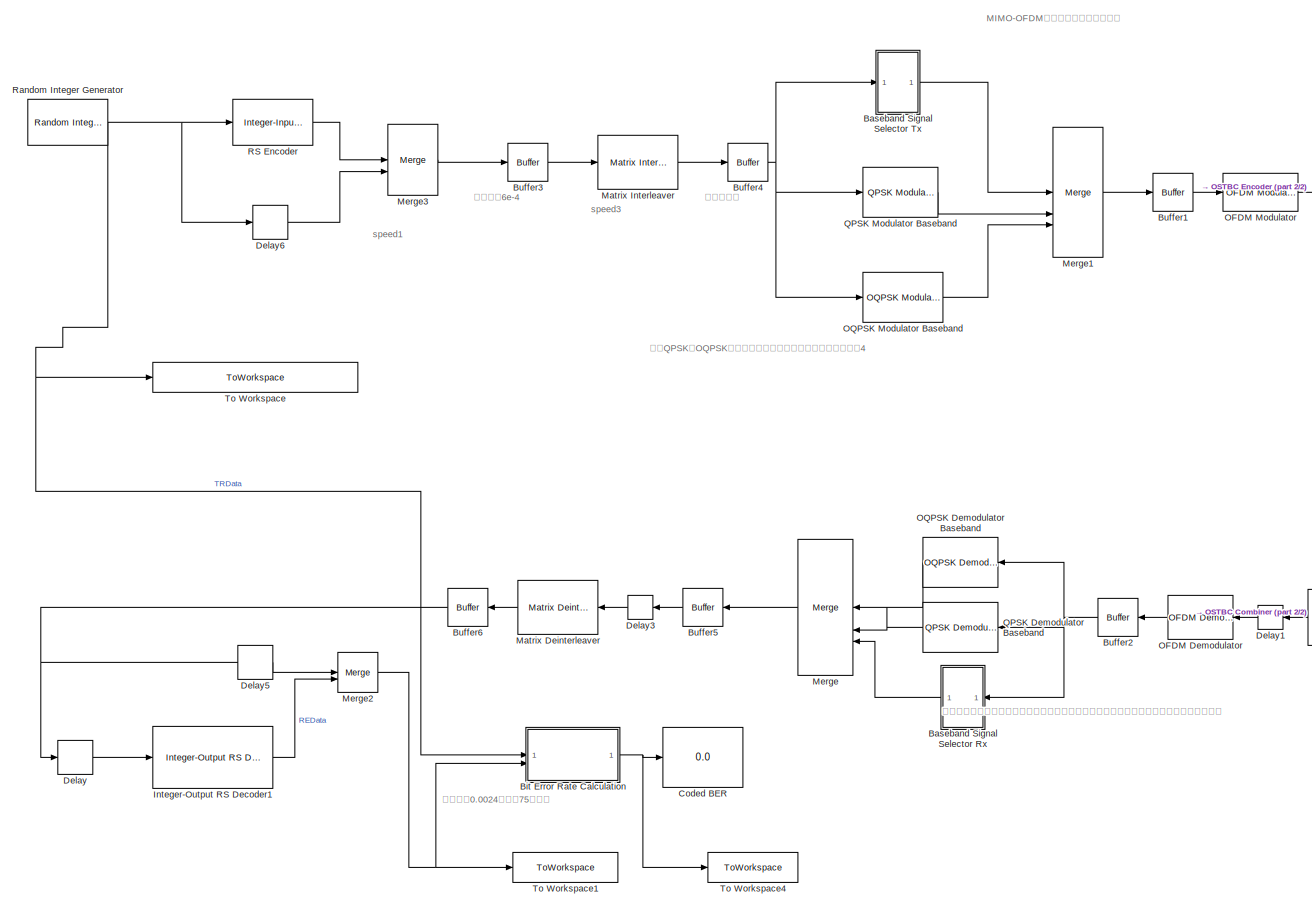
[diagram: root canvas - part 1/2, left side, full height]
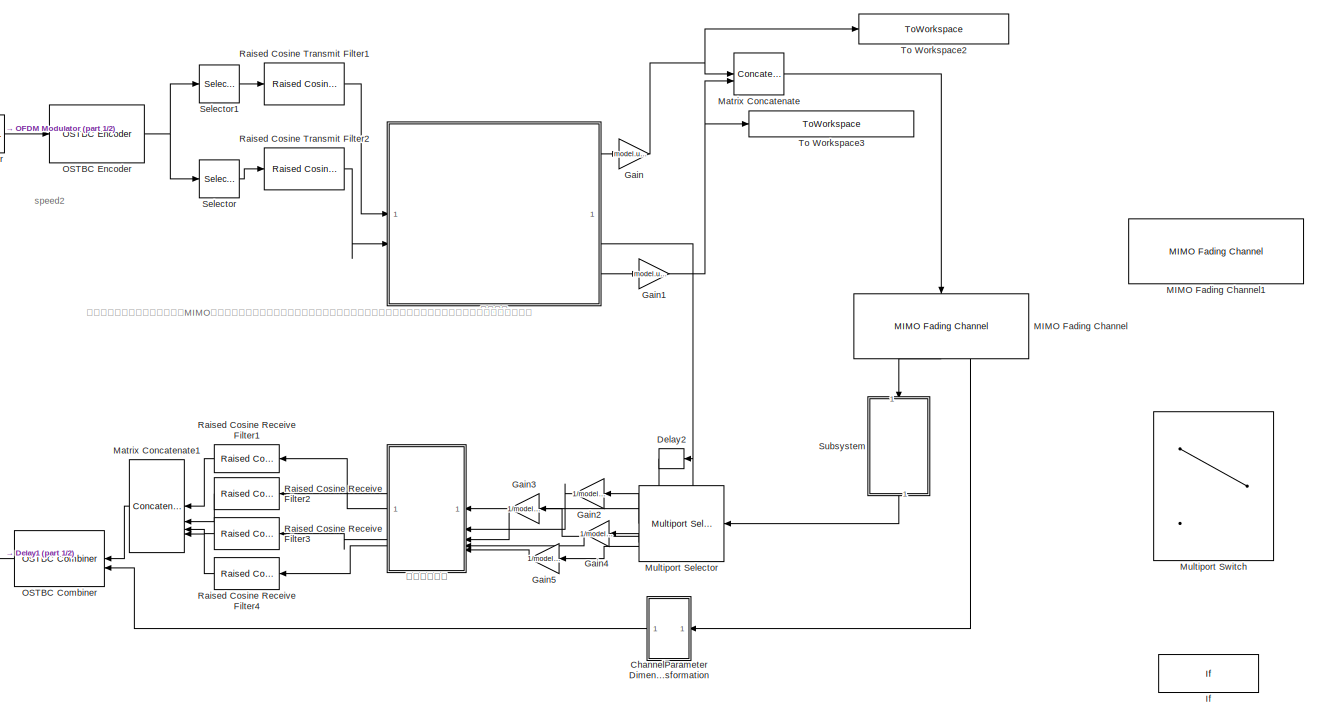
[diagram: root canvas - part 2/2, right side, full height]
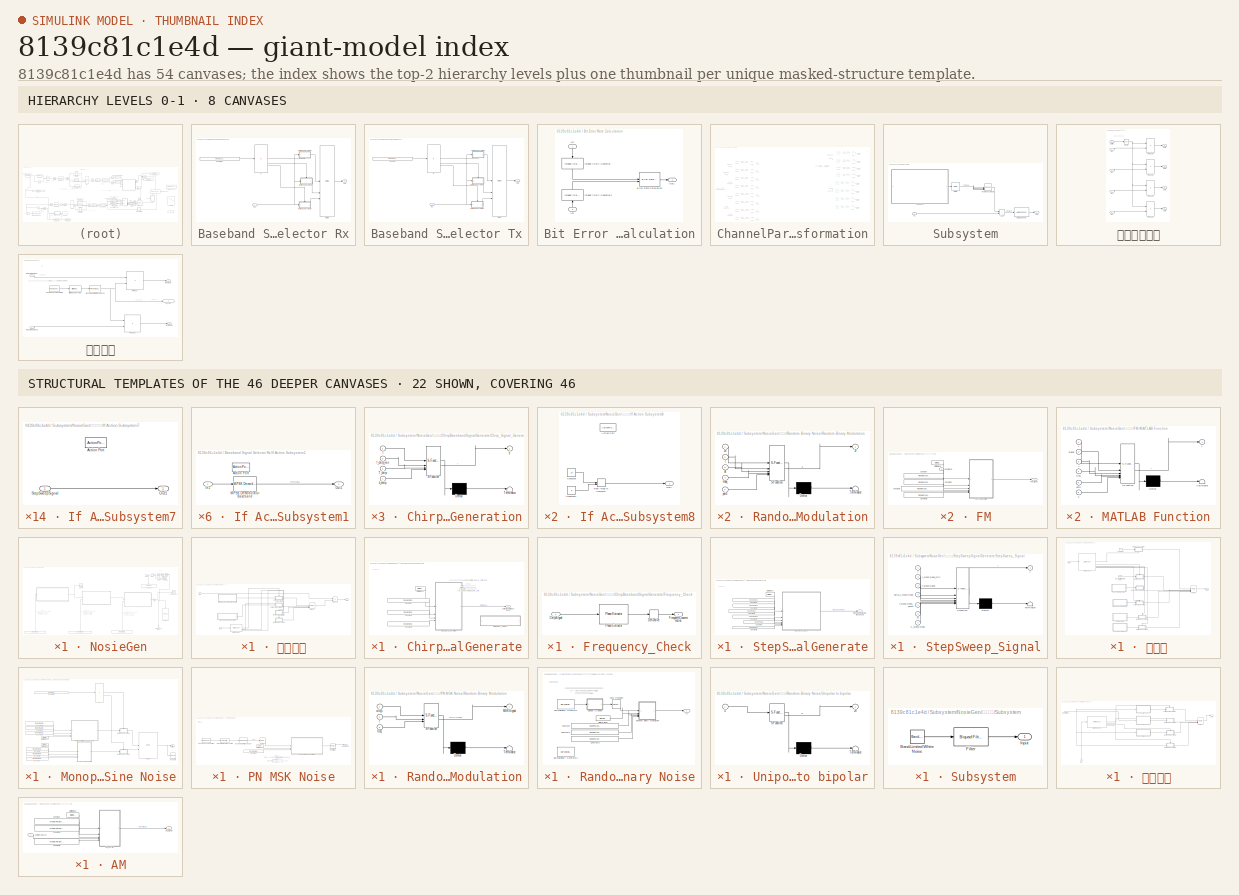
[diagram: thumbnail index - top-2 hierarchy levels (8 canvases) + 22 structural-template representatives of the remaining 46 canvases]
MODEL slx_8139c81c1e4d
KIND model
CONFIG AbsTol = auto
CONFIG EnableMultiTasking = off
CONFIG FixedStep = auto
CONFIG InitFcn = Parameter_Initialize_2
CONFIG MaxStep = auto
CONFIG MinStep = auto
CONFIG RelTol = 1e-3
CONFIG SampleTimeConstraint = Unconstrained
CONFIG SolverName = VariableStepAuto
CONFIG StartTime = 0.0
CONFIG StopTime = 0.3
BLOCK [SubSystem] Baseband Signal Selector Rx
  NameLocation = top
BLOCK [Constant] Baseband Signal Selector Rx/Constant
  Value = model.user_defined.TR.Baseband_Modulation_type
BLOCK [If] Baseband Signal Selector Rx/If
  ElseIfExpressions = u1 == 2
  IfExpression = u1 == 1
BLOCK [SubSystem] Baseband Signal Selector Rx/If Action Subsystem1
  TreatAsAtomicUnit = on
BLOCK [ActionPort] Baseband Signal Selector Rx/If Action Subsystem1/Action Port
  ActionPortLabel = elseif(u1 == 2)
BLOCK [Inport] Baseband Signal Selector Rx/If Action Subsystem1/In1
BLOCK [Reference] Baseband Signal Selector Rx/If Action Subsystem1/M-PSK Demodulator Baseband  REF=commdigbbndpm3/M-PSK
Demodulator
Baseband
  SourceBlock = commdigbbndpm3/M-PSK\nDemodulator\nBaseband
  SourceType = M-PSK Demodulator Baseband
BLOCK [Outport] Baseband Signal Selector Rx/If Action Subsystem1/Out1
BLOCK [SubSystem] Baseband Signal Selector Rx/If Action Subsystem4
  TreatAsAtomicUnit = on
BLOCK [ActionPort] Baseband Signal Selector Rx/If Action Subsystem4/Action Port
  ActionPortLabel = if(u1 == 1)
BLOCK [Inport] Baseband Signal Selector Rx/If Action Subsystem4/In1
BLOCK [Outport] Baseband Signal Selector Rx/If Action Subsystem4/Out1
BLOCK [Reference] Baseband Signal Selector Rx/If Action Subsystem4/Rectangular QAM Demodulator Baseband  REF=commdigbbndam3/Rectangular QAM
Demodulator
Baseband
  SourceBlock = commdigbbndam3/Rectangular QAM\nDemodulator\nBaseband
  SourceType = Rectangular QAM Demodulator Baseband
BLOCK [SubSystem] Baseband Signal Selector Rx/If Action Subsystem5
  TreatAsAtomicUnit = on
BLOCK [ActionPort] Baseband Signal Selector Rx/If Action Subsystem5/Action Port
  ActionPortLabel = else
BLOCK [Inport] Baseband Signal Selector Rx/If Action Subsystem5/In1
BLOCK [Outport] Baseband Signal Selector Rx/If Action Subsystem5/Out1
BLOCK [Reference] Baseband Signal Selector Rx/If Action Subsystem5/Rectangular QAM Demodulator Baseband  REF=commdigbbndam3/Rectangular QAM
Demodulator
Baseband
  SourceBlock = commdigbbndam3/Rectangular QAM\nDemodulator\nBaseband
  SourceType = Rectangular QAM Demodulator Baseband
BLOCK [Inport] Baseband Signal Selector Rx/In1
BLOCK [Merge] Baseband Signal Selector Rx/Merge
  Inputs = 3
BLOCK [Outport] Baseband Signal Selector Rx/Out1
BLOCK [SubSystem] Baseband Signal Selector Tx
BLOCK [Constant] Baseband Signal Selector Tx/Constant
  Value = model.user_defined.TR.Baseband_Modulation_type
BLOCK [If] Baseband Signal Selector Tx/If
  ElseIfExpressions = u1 == 2
  IfExpression = u1 == 1
BLOCK [SubSystem] Baseband Signal Selector Tx/If Action Subsystem1
  TreatAsAtomicUnit = on
BLOCK [ActionPort] Baseband Signal Selector Tx/If Action Subsystem1/Action Port
  ActionPortLabel = elseif(u1 == 2)
BLOCK [Inport] Baseband Signal Selector Tx/If Action Subsystem1/In1
BLOCK [Reference] Baseband Signal Selector Tx/If Action Subsystem1/M-PSK Modulator Baseband  REF=commdigbbndpm3/M-PSK
Modulator
Baseband
  SourceBlock = commdigbbndpm3/M-PSK\nModulator\nBaseband
  SourceType = M-PSK Modulator Baseband
BLOCK [Outport] Baseband Signal Selector Tx/If Action Subsystem1/Out1
BLOCK [SubSystem] Baseband Signal Selector Tx/If Action Subsystem4
  TreatAsAtomicUnit = on
BLOCK [ActionPort] Baseband Signal Selector Tx/If Action Subsystem4/Action Port
  ActionPortLabel = if(u1 == 1)
BLOCK [Inport] Baseband Signal Selector Tx/If Action Subsystem4/In1
BLOCK [Outport] Baseband Signal Selector Tx/If Action Subsystem4/Out1
BLOCK [Reference] Baseband Signal Selector Tx/If Action Subsystem4/Rectangular QAM Modulator Baseband  REF=commdigbbndam3/Rectangular QAM
Modulator
Baseband
  LibrarySourceBlock = commhdldigbbndam/Rectangular QAM\nModulator\nBaseband
  SourceBlock = commdigbbndam3/Rectangular QAM\nModulator\nBaseband
  SourceType = Rectangular QAM Modulator Baseband
BLOCK [SubSystem] Baseband Signal Selector Tx/If Action Subsystem5
  TreatAsAtomicUnit = on
BLOCK [ActionPort] Baseband Signal Selector Tx/If Action Subsystem5/Action Port
  ActionPortLabel = else
BLOCK [Inport] Baseband Signal Selector Tx/If Action Subsystem5/In1
BLOCK [Outport] Baseband Signal Selector Tx/If Action Subsystem5/Out1
BLOCK [Reference] Baseband Signal Selector Tx/If Action Subsystem5/Rectangular QAM Modulator Baseband1  REF=commdigbbndam3/Rectangular QAM
Modulator
Baseband
  LibrarySourceBlock = commhdldigbbndam/Rectangular QAM\nModulator\nBaseband
  SourceBlock = commdigbbndam3/Rectangular QAM\nModulator\nBaseband
  SourceType = Rectangular QAM Modulator Baseband
BLOCK [Inport] Baseband Signal Selector Tx/In1
BLOCK [Merge] Baseband Signal Selector Tx/Merge
  Inputs = 3
BLOCK [Outport] Baseband Signal Selector Tx/Out1
BLOCK [SubSystem] Bit Error Rate Calculation
BLOCK [Reference] Bit Error Rate Calculation/Error Rate Calculation  REF=commsink2/Error Rate
Calculation
  SourceBlock = commsink2/Error Rate\nCalculation
  SourceType = Error Rate Calculation
BLOCK [Inport] Bit Error Rate Calculation/In1
  NameLocation = right
BLOCK [Inport] Bit Error Rate Calculation/In2
  NameLocation = right
  Port = 2
BLOCK [Reference] Bit Error Rate Calculation/Integer to Bit Converter  REF=simulink/Logic and Bit
Operations/Integer to Bit
Converter
  LibrarySourceBlock = commutil2/Integer to Bit\nConverter
  NameLocation = right
  SourceBlock = simulink/Logic and Bit\nOperations/Integer to Bit\nConverter
  SourceType = Integer to Bit Converter
BLOCK [Reference] Bit Error Rate Calculation/Integer to Bit Converter1  REF=simulink/Logic and Bit
Operations/Integer to Bit
Converter
  LibrarySourceBlock = commutil2/Integer to Bit\nConverter
  NameLocation = right
  SourceBlock = simulink/Logic and Bit\nOperations/Integer to Bit\nConverter
  SourceType = Integer to Bit Converter
BLOCK [Outport] Bit Error Rate Calculation/Out1
  VectorParamsAs1DForOutWhenUnconnected = off
BLOCK [Buffer] Buffer1
  N = model.parameter.Buffer1.Output_size
  OutputFrames = off
BLOCK [Buffer] Buffer2
  N = model.parameter.Buffer2.Output_buffer_size
  NameLocation = top
  OutputFrames = off
BLOCK [Buffer] Buffer3
  N = model.parameter.Buffer3.Output_size
  OutputFrames = off
BLOCK [Buffer] Buffer4
  N = model.parameter.Buffer4.Output_size
  OutputFrames = off
BLOCK [Buffer] Buffer5
  N = model.parameter.Buffer5.Output_buffer_size
  NameLocation = top
  OutputFrames = off
BLOCK [Buffer] Buffer6
  N = model.parameter.Buffer6.Output_buffer_size
  NameLocation = top
  OutputFrames = off
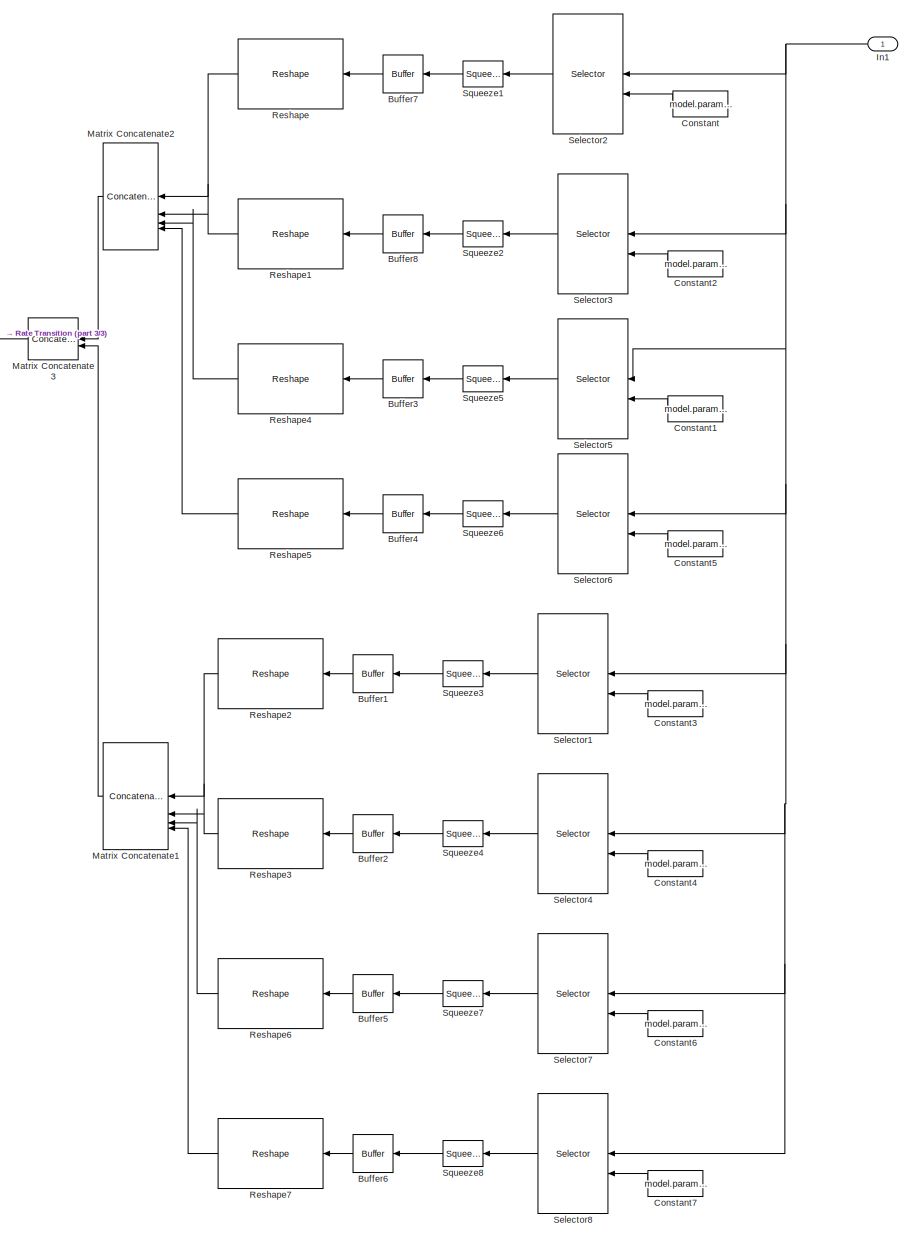
[diagram: ChannelParameterDimensionTransformation - part 1/3, right side, full height]
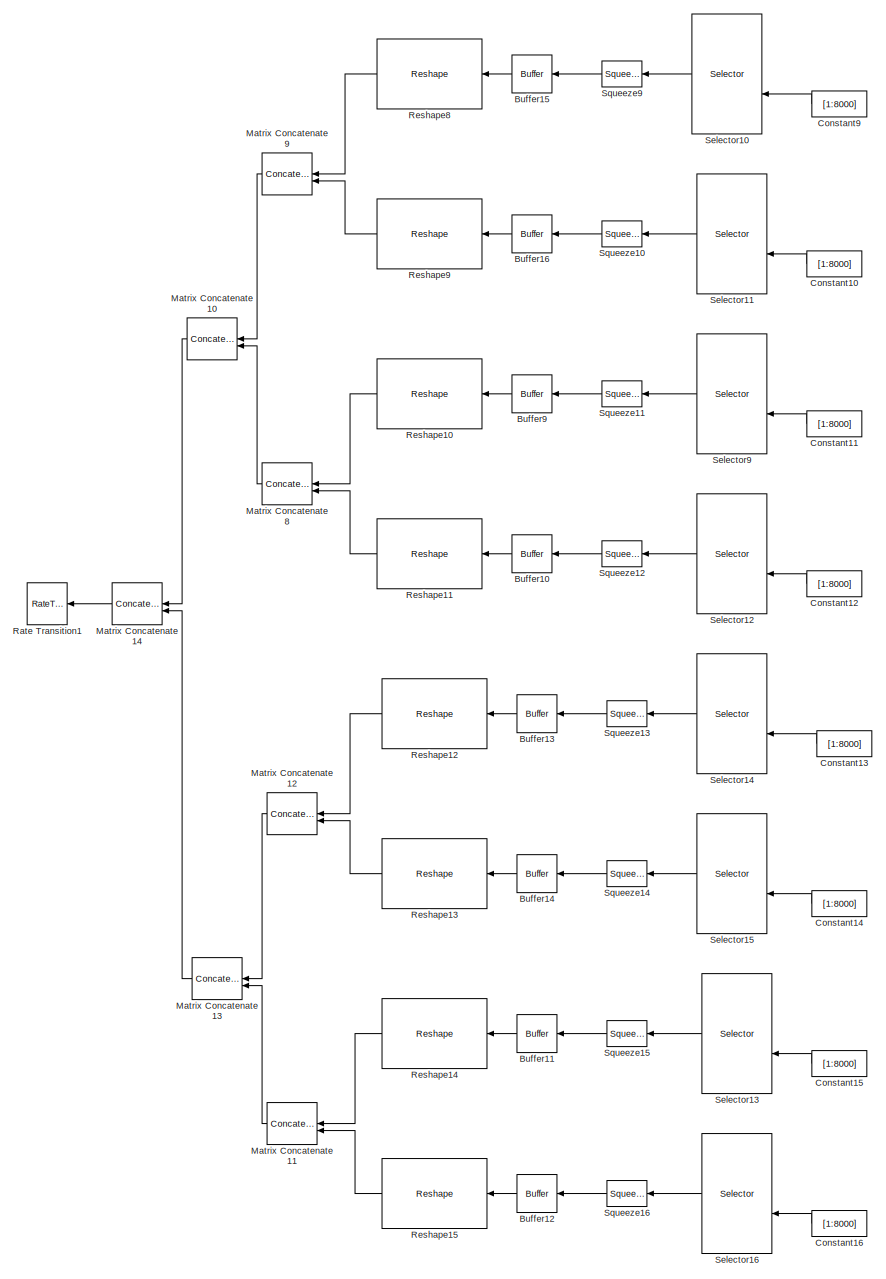
[diagram: ChannelParameterDimensionTransformation - part 2/3, left side, full height]
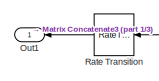
[diagram: ChannelParameterDimensionTransformation - part 3/3, top right region]
BLOCK [SubSystem] ChannelParameterDimensionTransformation
  NameLocation = top
BLOCK [Buffer] ChannelParameterDimensionTransformation/Buffer1
  N = model.parameter.CSI.buffers_length
  NameLocation = top
  OutputFrames = off
BLOCK [Buffer] ChannelParameterDimensionTransformation/Buffer10
  Commented = on
  N = 80
  NameLocation = top
  OutputFrames = off
BLOCK [Buffer] ChannelParameterDimensionTransformation/Buffer11
  Commented = on
  N = 80
  NameLocation = top
  OutputFrames = off
BLOCK [Buffer] ChannelParameterDimensionTransformation/Buffer12
  Commented = on
  N = 80
  NameLocation = top
  OutputFrames = off
BLOCK [Buffer] ChannelParameterDimensionTransformation/Buffer13
  Commented = on
  N = 80
  NameLocation = top
  OutputFrames = off
BLOCK [Buffer] ChannelParameterDimensionTransformation/Buffer14
  Commented = on
  N = 80
  NameLocation = top
  OutputFrames = off
BLOCK [Buffer] ChannelParameterDimensionTransformation/Buffer15
  Commented = on
  N = 80
  NameLocation = top
  OutputFrames = off
BLOCK [Buffer] ChannelParameterDimensionTransformation/Buffer16
  Commented = on
  N = 80
  NameLocation = top
  OutputFrames = off
BLOCK [Buffer] ChannelParameterDimensionTransformation/Buffer2
  N = model.parameter.CSI.buffers_length
  NameLocation = top
  OutputFrames = off
BLOCK [Buffer] ChannelParameterDimensionTransformation/Buffer3
  N = model.parameter.CSI.buffers_length
  NameLocation = top
  OutputFrames = off
BLOCK [Buffer] ChannelParameterDimensionTransformation/Buffer4
  N = model.parameter.CSI.buffers_length
  NameLocation = top
  OutputFrames = off
BLOCK [Buffer] ChannelParameterDimensionTransformation/Buffer5
  N = model.parameter.CSI.buffers_length
  NameLocation = top
  OutputFrames = off
BLOCK [Buffer] ChannelParameterDimensionTransformation/Buffer6
  N = model.parameter.CSI.buffers_length
  NameLocation = top
  OutputFrames = off
BLOCK [Buffer] ChannelParameterDimensionTransformation/Buffer7
  N = model.parameter.CSI.buffers_length
  NameLocation = top
  OutputFrames = off
BLOCK [Buffer] ChannelParameterDimensionTransformation/Buffer8
  N = model.parameter.CSI.buffers_length
  NameLocation = top
  OutputFrames = off
BLOCK [Buffer] ChannelParameterDimensionTransformation/Buffer9
  Commented = on
  N = 80
  NameLocation = top
  OutputFrames = off
BLOCK [Constant] ChannelParameterDimensionTransformation/Constant
  NameLocation = top
  Value = model.parameter.CSI.selector_constant_value
BLOCK [Constant] ChannelParameterDimensionTransformation/Constant1
  NameLocation = top
  Value = model.parameter.CSI.selector_constant_value
BLOCK [Constant] ChannelParameterDimensionTransformation/Constant10
  Commented = on
  NameLocation = top
  Value = [1:8000]
BLOCK [Constant] ChannelParameterDimensionTransformation/Constant11
  Commented = on
  NameLocation = top
  Value = [1:8000]
BLOCK [Constant] ChannelParameterDimensionTransformation/Constant12
  Commented = on
  NameLocation = top
  Value = [1:8000]
BLOCK [Constant] ChannelParameterDimensionTransformation/Constant13
  Commented = on
  NameLocation = top
  Value = [1:8000]
BLOCK [Constant] ChannelParameterDimensionTransformation/Constant14
  Commented = on
  NameLocation = top
  Value = [1:8000]
BLOCK [Constant] ChannelParameterDimensionTransformation/Constant15
  Commented = on
  NameLocation = top
  Value = [1:8000]
BLOCK [Constant] ChannelParameterDimensionTransformation/Constant16
  Commented = on
  NameLocation = top
  Value = [1:8000]
BLOCK [Constant] ChannelParameterDimensionTransformation/Constant2
  NameLocation = top
  Value = model.parameter.CSI.selector_constant_value
BLOCK [Constant] ChannelParameterDimensionTransformation/Constant3
  NameLocation = top
  Value = model.parameter.CSI.selector_constant_value
BLOCK [Constant] ChannelParameterDimensionTransformation/Constant4
  NameLocation = top
  Value = model.parameter.CSI.selector_constant_value
BLOCK [Constant] ChannelParameterDimensionTransformation/Constant5
  NameLocation = top
  Value = model.parameter.CSI.selector_constant_value
BLOCK [Constant] ChannelParameterDimensionTransformation/Constant6
  NameLocation = top
  Value = model.parameter.CSI.selector_constant_value
BLOCK [Constant] ChannelParameterDimensionTransformation/Constant7
  NameLocation = top
  Value = model.parameter.CSI.selector_constant_value
BLOCK [Constant] ChannelParameterDimensionTransformation/Constant9
  Commented = on
  NameLocation = top
  Value = [1:8000]
BLOCK [Inport] ChannelParameterDimensionTransformation/In1
  NameLocation = top
BLOCK [Concatenate] ChannelParameterDimensionTransformation/Matrix Concatenate1
  ConcatenateDimension = 3
  Mode = Multidimensional array
  NameLocation = top
  NumInputs = 4
BLOCK [Concatenate] ChannelParameterDimensionTransformation/Matrix Concatenate10
  Commented = on
  ConcatenateDimension = 3
  Mode = Multidimensional array
  NameLocation = top
BLOCK [Concatenate] ChannelParameterDimensionTransformation/Matrix Concatenate11
  Commented = on
  ConcatenateDimension = 4
  Mode = Multidimensional array
  NameLocation = top
BLOCK [Concatenate] ChannelParameterDimensionTransformation/Matrix Concatenate12
  Commented = on
  ConcatenateDimension = 4
  Mode = Multidimensional array
  NameLocation = top
BLOCK [Concatenate] ChannelParameterDimensionTransformation/Matrix Concatenate13
  Commented = on
  ConcatenateDimension = 3
  Mode = Multidimensional array
  NameLocation = top
BLOCK [Concatenate] ChannelParameterDimensionTransformation/Matrix Concatenate14
  Commented = on
  ConcatenateDimension = 2
  Mode = Multidimensional array
  NameLocation = top
BLOCK [Concatenate] ChannelParameterDimensionTransformation/Matrix Concatenate2
  ConcatenateDimension = 3
  Mode = Multidimensional array
  NameLocation = top
  NumInputs = 4
BLOCK [Concatenate] ChannelParameterDimensionTransformation/Matrix Concatenate3
  ConcatenateDimension = 2
  Mode = Multidimensional array
  NameLocation = top
BLOCK [Concatenate] ChannelParameterDimensionTransformation/Matrix Concatenate8
  Commented = on
  ConcatenateDimension = 4
  Mode = Multidimensional array
  NameLocation = top
BLOCK [Concatenate] ChannelParameterDimensionTransformation/Matrix Concatenate9
  Commented = on
  ConcatenateDimension = 4
  Mode = Multidimensional array
  NameLocation = top
BLOCK [Outport] ChannelParameterDimensionTransformation/Out1
BLOCK [RateTransition] ChannelParameterDimensionTransformation/Rate Transition
  NameLocation = top
  OutPortSampleTime = model.Intermediate_variable.system_frame_speed_2
BLOCK [RateTransition] ChannelParameterDimensionTransformation/Rate Transition1
  Commented = on
  NameLocation = top
  OutPortSampleTime = 2.65e-4
BLOCK [Reshape] ChannelParameterDimensionTransformation/Reshape
  NameLocation = top
  OutputDimensionality = Customize
  OutputDimensions = model.parameter.CSI.reshape_dimension
BLOCK [Reshape] ChannelParameterDimensionTransformation/Reshape1
  NameLocation = top
  OutputDimensionality = Customize
  OutputDimensions = model.parameter.CSI.reshape_dimension
BLOCK [Reshape] ChannelParameterDimensionTransformation/Reshape10
  Commented = on
  NameLocation = top
  OutputDimensionality = Customize
  OutputDimensions = [80,1,1,1]
BLOCK [Reshape] ChannelParameterDimensionTransformation/Reshape11
  Commented = on
  NameLocation = top
  OutputDimensionality = Customize
  OutputDimensions = [80,1,1,1]
BLOCK [Reshape] ChannelParameterDimensionTransformation/Reshape12
  Commented = on
  NameLocation = top
  OutputDimensionality = Customize
  OutputDimensions = [80,1,1,1]
BLOCK [Reshape] ChannelParameterDimensionTransformation/Reshape13
  Commented = on
  NameLocation = top
  OutputDimensionality = Customize
  OutputDimensions = [80,1,1,1]
BLOCK [Reshape] ChannelParameterDimensionTransformation/Reshape14
  Commented = on
  NameLocation = top
  OutputDimensionality = Customize
  OutputDimensions = [80,1,1,1]
BLOCK [Reshape] ChannelParameterDimensionTransformation/Reshape15
  Commented = on
  NameLocation = top
  OutputDimensionality = Customize
  OutputDimensions = [80,1,1,1]
BLOCK [Reshape] ChannelParameterDimensionTransformation/Reshape2
  NameLocation = top
  OutputDimensionality = Customize
  OutputDimensions = model.parameter.CSI.reshape_dimension
BLOCK [Reshape] ChannelParameterDimensionTransformation/Reshape3
  NameLocation = top
  OutputDimensionality = Customize
  OutputDimensions = model.parameter.CSI.reshape_dimension
BLOCK [Reshape] ChannelParameterDimensionTransformation/Reshape4
  NameLocation = top
  OutputDimensionality = Customize
  OutputDimensions = model.parameter.CSI.reshape_dimension
BLOCK [Reshape] ChannelParameterDimensionTransformation/Reshape5
  NameLocation = top
  OutputDimensionality = Customize
  OutputDimensions = model.parameter.CSI.reshape_dimension
BLOCK [Reshape] ChannelParameterDimensionTransformation/Reshape6
  NameLocation = top
  OutputDimensionality = Customize
  OutputDimensions = model.parameter.CSI.reshape_dimension
BLOCK [Reshape] ChannelParameterDimensionTransformation/Reshape7
  NameLocation = top
  OutputDimensionality = Customize
  OutputDimensions = model.parameter.CSI.reshape_dimension
BLOCK [Reshape] ChannelParameterDimensionTransformation/Reshape8
  Commented = on
  NameLocation = top
  OutputDimensionality = Customize
  OutputDimensions = [80,1,1,1]
BLOCK [Reshape] ChannelParameterDimensionTransformation/Reshape9
  Commented = on
  NameLocation = top
  OutputDimensionality = Customize
  OutputDimensions = [80,1,1,1]
BLOCK [Selector] ChannelParameterDimensionTransformation/Selector1
  IndexOptions = Index vector (port),Index vector (dialog),Index vector (dialog),Index vector (dialog)
  Indices = [1 3],1,2,1
  InputPortWidth = 3
  NameLocation = top
  NumberOfDimensions = 4
  OutputSizes = 1,1,1,1
BLOCK [Selector] ChannelParameterDimensionTransformation/Selector10
  Commented = on
  IndexOptions = Index vector (port),Index vector (dialog),Index vector (dialog),Index vector (dialog)
  Indices = [1 3],1,1,1
  InputPortWidth = 3
  NameLocation = top
  NumberOfDimensions = 4
  OutputSizes = 1,1,1,1
BLOCK [Selector] ChannelParameterDimensionTransformation/Selector11
  Commented = on
  IndexOptions = Index vector (port),Index vector (dialog),Index vector (dialog),Index vector (dialog)
  Indices = [1 3],1,1,2
  InputPortWidth = 3
  NameLocation = top
  NumberOfDimensions = 4
  OutputSizes = 1,1,1,1
BLOCK [Selector] ChannelParameterDimensionTransformation/Selector12
  Commented = on
  IndexOptions = Index vector (port),Index vector (dialog),Index vector (dialog),Index vector (dialog)
  Indices = [1 3],1,2,2
  InputPortWidth = 3
  NameLocation = top
  NumberOfDimensions = 4
  OutputSizes = 1,1,1,1
BLOCK [Selector] ChannelParameterDimensionTransformation/Selector13
  Commented = on
  IndexOptions = Index vector (port),Index vector (dialog),Index vector (dialog),Index vector (dialog)
  Indices = [1 3],2,2,1
  InputPortWidth = 3
  NameLocation = top
  NumberOfDimensions = 4
  OutputSizes = 1,1,1,1
BLOCK [Selector] ChannelParameterDimensionTransformation/Selector14
  Commented = on
  IndexOptions = Index vector (port),Index vector (dialog),Index vector (dialog),Index vector (dialog)
  Indices = [1 3],2,1,1
  InputPortWidth = 3
  NameLocation = top
  NumberOfDimensions = 4
  OutputSizes = 1,1,1,1
BLOCK [Selector] ChannelParameterDimensionTransformation/Selector15
  Commented = on
  IndexOptions = Index vector (port),Index vector (dialog),Index vector (dialog),Index vector (dialog)
  Indices = [1 3],2,1,2
  InputPortWidth = 3
  NameLocation = top
  NumberOfDimensions = 4
  OutputSizes = 1,1,1,1
BLOCK [Selector] ChannelParameterDimensionTransformation/Selector16
  Commented = on
  IndexOptions = Index vector (port),Index vector (dialog),Index vector (dialog),Index vector (dialog)
  Indices = [1 3],2,2,2
  InputPortWidth = 3
  NameLocation = top
  NumberOfDimensions = 4
  OutputSizes = 1,1,1,1
BLOCK [Selector] ChannelParameterDimensionTransformation/Selector2
  IndexOptions = Index vector (port),Index vector (dialog),Index vector (dialog),Index vector (dialog)
  Indices = [1 3],1,1,1
  InputPortWidth = 3
  NameLocation = top
  NumberOfDimensions = 4
  OutputSizes = 1,1,1,1
BLOCK [Selector] ChannelParameterDimensionTransformation/Selector3
  IndexOptions = Index vector (port),Index vector (dialog),Index vector (dialog),Index vector (dialog)
  Indices = [1 3],1,1,2
  InputPortWidth = 3
  NameLocation = top
  NumberOfDimensions = 4
  OutputSizes = 1,1,1,1
BLOCK [Selector] ChannelParameterDimensionTransformation/Selector4
  IndexOptions = Index vector (port),Index vector (dialog),Index vector (dialog),Index vector (dialog)
  Indices = [1 3],1,2,2
  InputPortWidth = 3
  NameLocation = top
  NumberOfDimensions = 4
  OutputSizes = 1,1,1,1
BLOCK [Selector] ChannelParameterDimensionTransformation/Selector5
  IndexOptions = Index vector (port),Index vector (dialog),Index vector (dialog),Index vector (dialog)
  Indices = [1 3],1,1,3
  InputPortWidth = 3
  NameLocation = top
  NumberOfDimensions = 4
  OutputSizes = 1,1,1,1
BLOCK [Selector] ChannelParameterDimensionTransformation/Selector6
  IndexOptions = Index vector (port),Index vector (dialog),Index vector (dialog),Index vector (dialog)
  Indices = [1 3],1,1,4
  InputPortWidth = 3
  NameLocation = top
  NumberOfDimensions = 4
  OutputSizes = 1,1,1,1
BLOCK [Selector] ChannelParameterDimensionTransformation/Selector7
  IndexOptions = Index vector (port),Index vector (dialog),Index vector (dialog),Index vector (dialog)
  Indices = [1 3],1,2,3
  InputPortWidth = 3
  NameLocation = top
  NumberOfDimensions = 4
  OutputSizes = 1,1,1,1
BLOCK [Selector] ChannelParameterDimensionTransformation/Selector8
  IndexOptions = Index vector (port),Index vector (dialog),Index vector (dialog),Index vector (dialog)
  Indices = [1 3],1,2,4
  InputPortWidth = 3
  NameLocation = top
  NumberOfDimensions = 4
  OutputSizes = 1,1,1,1
BLOCK [Selector] ChannelParameterDimensionTransformation/Selector9
  Commented = on
  IndexOptions = Index vector (port),Index vector (dialog),Index vector (dialog),Index vector (dialog)
  Indices = [1 3],1,2,1
  InputPortWidth = 3
  NameLocation = top
  NumberOfDimensions = 4
  OutputSizes = 1,1,1,1
BLOCK [Squeeze] ChannelParameterDimensionTransformation/Squeeze1
  NameLocation = top
BLOCK [Squeeze] ChannelParameterDimensionTransformation/Squeeze10
  Commented = on
  NameLocation = top
BLOCK [Squeeze] ChannelParameterDimensionTransformation/Squeeze11
  Commented = on
  NameLocation = top
BLOCK [Squeeze] ChannelParameterDimensionTransformation/Squeeze12
  Commented = on
  NameLocation = top
BLOCK [Squeeze] ChannelParameterDimensionTransformation/Squeeze13
  Commented = on
  NameLocation = top
BLOCK [Squeeze] ChannelParameterDimensionTransformation/Squeeze14
  Commented = on
  NameLocation = top
BLOCK [Squeeze] ChannelParameterDimensionTransformation/Squeeze15
  Commented = on
  NameLocation = top
BLOCK [Squeeze] ChannelParameterDimensionTransformation/Squeeze16
  Commented = on
  NameLocation = top
BLOCK [Squeeze] ChannelParameterDimensionTransformation/Squeeze2
  NameLocation = top
BLOCK [Squeeze] ChannelParameterDimensionTransformation/Squeeze3
  NameLocation = top
BLOCK [Squeeze] ChannelParameterDimensionTransformation/Squeeze4
  NameLocation = top
BLOCK [Squeeze] ChannelParameterDimensionTransformation/Squeeze5
  NameLocation = top
BLOCK [Squeeze] ChannelParameterDimensionTransformation/Squeeze6
  NameLocation = top
BLOCK [Squeeze] ChannelParameterDimensionTransformation/Squeeze7
  NameLocation = top
BLOCK [Squeeze] ChannelParameterDimensionTransformation/Squeeze8
  NameLocation = top
BLOCK [Squeeze] ChannelParameterDimensionTransformation/Squeeze9
  Commented = on
  NameLocation = top
BLOCK [Display] Coded BER
  Decimation = 1
BLOCK [Delay] Delay
  DelayLength = model.parameter.Delay4.delay_sample
  InitialCondition = 0
  InputPortMap = u0
  InputProcessing = Columns as channels (frame based)
BLOCK [Delay] Delay1
  DelayLength = model.parameter.Delay1.Sample_num
  InitialCondition = 0
  InputPortMap = u0
  InputProcessing = Columns as channels (frame based)
  NameLocation = top
BLOCK [Delay] Delay2
  DelayLength = model.parameter.Delay2.Sample_num
  InitialCondition = 0
  InputPortMap = u0
  InputProcessing = Columns as channels (frame based)
  NameLocation = top
BLOCK [Delay] Delay3
  DelayLength = model.parameter.Delay3.Sample_num
  InitialCondition = 0
  InputPortMap = u0
  InputProcessing = Columns as channels (frame based)
  NameLocation = top
BLOCK [Delay] Delay5
  Commented = on
  DelayLength = 0
  InitialCondition = 0
  InputPortMap = u0
  InputProcessing = Columns as channels (frame based)
BLOCK [Delay] Delay6
  Commented = on
  DelayLength = 0
  InitialCondition = 0
  InputPortMap = u0
BLOCK [Gain] Gain
  Gain = model.user_defined.TR.Sig_power_controller_coeffience
BLOCK [Gain] Gain1
  Gain = model.user_defined.TR.Sig_power_controller_coeffience
BLOCK [Gain] Gain2
  Gain = 1/model.user_defined.TR.Sig_power_controller_coeffience
  NameLocation = top
BLOCK [Gain] Gain3
  Gain = 1/model.user_defined.TR.Sig_power_controller_coeffience
  NameLocation = top
BLOCK [Gain] Gain4
  Gain = 1/model.user_defined.TR.Sig_power_controller_coeffience
  NameLocation = top
BLOCK [Gain] Gain5
  Gain = 1/model.user_defined.TR.Sig_power_controller_coeffience
  NameLocation = top
BLOCK [If] If
  Commented = on
  ElseIfExpressions = u1 == 3, u1 == 4
  IfExpression = u1 == 2
BLOCK [Reference] Integer-Output RS Decoder1  REF=commblkcod2/Integer-Output
RS Decoder
  SourceBlock = commblkcod2/Integer-Output\nRS Decoder
  SourceType = Integer-Output RS Decoder
BLOCK [Reference] MIMO Fading Channel  REF=commchan3/MIMO Fading Channel
  NameLocation = left
  SourceBlock = commchan3/MIMO Fading Channel
  SourceType = MIMO Fading Channel
BLOCK [Reference] MIMO Fading Channel1  REF=commchan3/MIMO Fading Channel
  Commented = on
  NameLocation = left
  SourceBlock = commchan3/MIMO Fading Channel
  SourceType = MIMO Fading Channel
BLOCK [Concatenate] Matrix Concatenate
  ConcatenateDimension = model.parameter.Matrix_Concatenate.Cascade_Dimension
  Mode = Multidimensional array
  NumInputs = model.parameter.Matrix_Concatenate.Input_num
BLOCK [Concatenate] Matrix Concatenate1
  ConcatenateDimension = model.parameter.Matrix_Concatenate1.Cascade_Dimension
  Mode = Multidimensional array
  NameLocation = top
  NumInputs = model.parameter.Matrix_Concatenate1.Input_num
BLOCK [Reference] Matrix Deinterleaver  REF=commblkintrlv2/Matrix
Deinterleaver
  NameLocation = top
  SourceBlock = commblkintrlv2/Matrix\nDeinterleaver
  SourceType = Matrix Deinterleaver
  StatePerturbationForJacobian = 1.0e-05
BLOCK [Reference] Matrix Interleaver  REF=commblkintrlv2/Matrix
Interleaver
  SourceBlock = commblkintrlv2/Matrix\nInterleaver
  SourceType = Matrix Interleaver
  StatePerturbationForJacobian = 1.0e-05
BLOCK [Merge] Merge
  Inputs = 3
  NameLocation = top
BLOCK [Merge] Merge1
  Inputs = 3
BLOCK [Merge] Merge2
BLOCK [Merge] Merge3
BLOCK [Reference] Multiport Selector  REF=dspindex/Multiport
Selector
  NameLocation = top
  SourceBlock = dspindex/Multiport\nSelector
  SourceType = Multiport Selector
BLOCK [MultiPortSwitch] Multiport Switch
  Commented = on
  InputSameDT = off
  SaturateOnIntegerOverflow = off
BLOCK [Reference] OFDM Demodulator  REF=commofdm/OFDM Demodulator
  SourceBlock = commofdm/OFDM Demodulator
  SourceType = OFDM Demodulator
BLOCK [Reference] OFDM Modulator  REF=commofdm/OFDM Modulator
  SourceBlock = commofdm/OFDM Modulator
  SourceType = OFDM Modulator
  StatePerturbationForJacobian = 1.0e-05
BLOCK [Reference] OQPSK Demodulator Baseband  REF=commdigbbndpm3/OQPSK
Demodulator
Baseband
  Commented = on
  NameLocation = top
  SourceBlock = commdigbbndpm3/OQPSK\nDemodulator\nBaseband
  SourceType = OQPSK Demodulator Baseband
  UserDataPersistent = on
BLOCK [Reference] OQPSK Modulator Baseband  REF=commdigbbndpm3/OQPSK
Modulator
Baseband
  Commented = on
  SourceBlock = commdigbbndpm3/OQPSK\nModulator\nBaseband
  SourceType = OQPSK Modulator Baseband
  UserDataPersistent = on
BLOCK [Reference] OSTBC Combiner  REF=commmimo/OSTBC Combiner
  SourceBlock = commmimo/OSTBC Combiner
  SourceType = OSTBC Combiner
BLOCK [Reference] OSTBC Encoder  REF=commmimo/OSTBC Encoder
  SourceBlock = commmimo/OSTBC Encoder
  SourceType = OSTBC Encoder
BLOCK [Reference] QPSK Demodulator Baseband  REF=commdigbbndpm3/QPSK
Demodulator
Baseband
  Commented = on
  NameLocation = top
  SourceBlock = commdigbbndpm3/QPSK\nDemodulator\nBaseband
  SourceType = QPSK Demodulator Baseband
BLOCK [Reference] QPSK Modulator Baseband  REF=commdigbbndpm3/QPSK
Modulator
Baseband
  Commented = on
  SourceBlock = commdigbbndpm3/QPSK\nModulator\nBaseband
  SourceType = QPSK Modulator Baseband
BLOCK [Reference] RS Encoder  REF=commblkcod2/Integer-Input
RS Encoder
  SourceBlock = commblkcod2/Integer-Input\nRS Encoder
  SourceType = Integer-Input RS Encoder
BLOCK [Reference] Raised Cosine Receive Filter1  REF=commfilt2/Raised Cosine
Receive Filter
  NameLocation = top
  SourceBlock = commfilt2/Raised Cosine\nReceive Filter
  SourceType = Raised Cosine Receive Filter
BLOCK [Reference] Raised Cosine Receive Filter2  REF=commfilt2/Raised Cosine
Receive Filter
  NameLocation = top
  SourceBlock = commfilt2/Raised Cosine\nReceive Filter
  SourceType = Raised Cosine Receive Filter
BLOCK [Reference] Raised Cosine Receive Filter3  REF=commfilt2/Raised Cosine
Receive Filter
  NameLocation = top
  SourceBlock = commfilt2/Raised Cosine\nReceive Filter
  SourceType = Raised Cosine Receive Filter
BLOCK [Reference] Raised Cosine Receive Filter4  REF=commfilt2/Raised Cosine
Receive Filter
  NameLocation = top
  SourceBlock = commfilt2/Raised Cosine\nReceive Filter
  SourceType = Raised Cosine Receive Filter
BLOCK [Reference] Raised Cosine Transmit Filter1  REF=commfilt2/Raised Cosine
Transmit Filter
  SourceBlock = commfilt2/Raised Cosine\nTransmit Filter
  SourceType = Raised Cosine Transmit Filter
BLOCK [Reference] Raised Cosine Transmit Filter2  REF=commfilt2/Raised Cosine
Transmit Filter
  SourceBlock = commfilt2/Raised Cosine\nTransmit Filter
  SourceType = Raised Cosine Transmit Filter
BLOCK [Reference] Random Integer Generator  REF=commrandsrc3/Random Integer
Generator
  SourceBlock = commrandsrc3/Random Integer\nGenerator
  SourceType = Random Integer Generator
BLOCK [Selector] Selector
  IndexOptions = Index vector (dialog),Index vector (dialog)
  Indices = [1:272],2
  InputPortWidth = 3
  NumberOfDimensions = 2
  OutputSizes = 1,1
BLOCK [Selector] Selector1
  IndexOptions = Index vector (dialog),Index vector (dialog)
  Indices = [1:272],1
  InputPortWidth = 3
  NumberOfDimensions = 2
  OutputSizes = 1,1
BLOCK [SubSystem] Subsystem
BLOCK [Reference] Subsystem/AWGN Channel  REF=commchan3/AWGN
Channel
  SourceBlock = commchan3/AWGN\nChannel
  SourceType = AWGN Channel
  UserDataPersistent = on
BLOCK [Sum] Subsystem/Add
  IconShape = rectangular
BLOCK [Buffer] Subsystem/Buffer
  N = model.parameter.M_FSK_Modulator_Baseband1.Samples_per_symbol
  OutputFrames = off
BLOCK [Inport] Subsystem/In1
BLOCK [SubSystem] Subsystem/NosieGen
BLOCK [Sum] Subsystem/NosieGen/Add1
  Commented = on
  IconShape = rectangular
  NameLocation = top
BLOCK [Buffer] Subsystem/NosieGen/Buffer7
  Commented = on
  N = 1
  NameLocation = top
  OutputFrames = off
BLOCK [Constant] Subsystem/NosieGen/Constant1
  Commented = on
  NameLocation = top
  SampleTime = model.Parameters.NoiseGen.NoiseTs
  Value = eps
BLOCK [DigitalClock] Subsystem/NosieGen/Digital Clock1
  Commented = on
  NameLocation = top
  SampleTime = model.Parameters.NoiseGen.NoiseTs
BLOCK [Product] Subsystem/NosieGen/Divide1
  Commented = on
  Inputs = */
  NameLocation = top
BLOCK [Gain] Subsystem/NosieGen/Gain
  Gain = model.Parameters.jammer_power_controller
BLOCK [Integrator] Subsystem/NosieGen/Integrator1
  Commented = on
  NameLocation = top
BLOCK [Outport] Subsystem/NosieGen/Jamming_Signal_Output
  NameLocation = top
BLOCK [Math] Subsystem/NosieGen/Power1
  Commented = on
  NameLocation = top
  Operator = magnitude^2
BLOCK [Scope] Subsystem/NosieGen/Scope1
  Commented = on
  Floating = off
  NameLocation = top
  NumInputPorts = 1
  ScopeSpecificationString = Simulink.scopes.TimeScopeBlockCfg('CurrentConfiguration', extmgr.ConfigurationSet(extmgr.Configuration('Core','General UI',true),extmgr.Configuration('Core','Source UI',true),extmgr.Configuration('Sources','WiredSimulink',true,'DataLoggingVariableName','ScopeData1'),extmgr.Configuration('Visuals','Time Domain',true,'SerializedDisplays',{struct('MinYLimReal','-13.45061','MaxYLimReal','121.05549','Y...<+1756ch>
BLOCK [SpectrumAnalyzer] Subsystem/NosieGen/Spectrum Analyzer
  Commented = on
  NameLocation = right
  ScopeSpecificationString = spbscopes.SpectrumAnalyzerBlockCfg('CurrentConfiguration', extmgr.ConfigurationSet(extmgr.Configuration('Core','General UI',true),extmgr.Configuration('Core','Source UI',true),extmgr.Configuration('Sources','WiredSimulink',true),extmgr.Configuration('Visuals','Spectrum',true,'AxesProperties',struct('Color',{[0 0 0],[0 0 0]},'XColor',{[0.686274509803922 0.686274509803922 0.686274509803922],[0.68627...<+2633ch>
BLOCK [SpectrumAnalyzer] Subsystem/NosieGen/Spectrum Analyzer1
  Commented = on
  NameLocation = right
  ScopeSpecificationString = spbscopes.SpectrumAnalyzerBlockCfg('CurrentConfiguration', extmgr.ConfigurationSet(extmgr.Configuration('Core','General UI',true),extmgr.Configuration('Core','Source UI',true),extmgr.Configuration('Sources','WiredSimulink',true),extmgr.Configuration('Visuals','Spectrum',true,'AxesProperties',struct('Color',{[0 0 0],[0 0 0]},'XColor',{[0.686274509803922 0.686274509803922 0.686274509803922],[0.68627...<+2494ch>
BLOCK [ToWorkspace] Subsystem/NosieGen/To Workspace
  Commented = on
  FixptAsFi = on
  MaxDataPoints = inf
  NameLocation = left
  SampleTime = -1
  SaveFormat = Timeseries
  VariableName = Noise
BLOCK [ToWorkspace] Subsystem/NosieGen/To Workspace1
  Commented = on
  FixptAsFi = on
  MaxDataPoints = inf
  NameLocation = left
  SampleTime = -1
  SaveFormat = Timeseries
  VariableName = NoisePowerEstimation1
BLOCK [SubSystem] Subsystem/NosieGen/干扰方式
BLOCK [SubSystem] Subsystem/NosieGen/干扰方式/ChirpBasebandSignalGenerate
  AttributesFormatString = 线性调频模块：线性调频公式(y=exp(2*pi*(f_min*t+0.5*k_chirp*t^2)))\n输入参数：\n1. f_min,为线性调频信号的起始频率\n2.f_max为线性调频信号的终止频率\n3.T_chirp为线性调频信号的调频时间\n斜率k_sweep = (f_min-f_max)/T_chirp
BLOCK [Outport] Subsystem/NosieGen/干扰方式/ChirpBasebandSignalGenerate/ChirpSignalOfBaseband
BLOCK [SubSystem] Subsystem/NosieGen/干扰方式/ChirpBasebandSignalGenerate/Chirp_Signal_Generation
  ErrorFcn = Stateflow.Translate.translate
  LibrarySourceBlock = simulink/User-Defined\nFunctions/MATLAB Function
  PermitHierarchicalResolution = ExplicitOnly
  SFBlockType = MATLAB Function
  TreatAsAtomicUnit = on
BLOCK [Demux] Subsystem/NosieGen/干扰方式/ChirpBasebandSignalGenerate/Chirp_Signal_Generation/ Demux 
  Outputs = 1
BLOCK [S-Function] Subsystem/NosieGen/干扰方式/ChirpBasebandSignalGenerate/Chirp_Signal_Generation/ SFunction 
  EnableBusSupport = on
  FunctionName = sf_sfun
  PortCounts = [4 2]
  SFcnIsStateOwnerBlock = off
  SFunctionDeploymentMode = off
  Tag = Stateflow S-Function 2
BLOCK [Terminator] Subsystem/NosieGen/干扰方式/ChirpBasebandSignalGenerate/Chirp_Signal_Generation/ Terminator 
BLOCK [Inport] Subsystem/NosieGen/干扰方式/ChirpBasebandSignalGenerate/Chirp_Signal_Generation/T_chirp
  Port = 3
BLOCK [Inport] Subsystem/NosieGen/干扰方式/ChirpBasebandSignalGenerate/Chirp_Signal_Generation/f_chirp_min
  Port = 2
BLOCK [Inport] Subsystem/NosieGen/干扰方式/ChirpBasebandSignalGenerate/Chirp_Signal_Generation/k_chirp
  Port = 4
BLOCK [Inport] Subsystem/NosieGen/干扰方式/ChirpBasebandSignalGenerate/Chirp_Signal_Generation/t
BLOCK [Outport] Subsystem/NosieGen/干扰方式/ChirpBasebandSignalGenerate/Chirp_Signal_Generation/y
BLOCK [Constant] Subsystem/NosieGen/干扰方式/ChirpBasebandSignalGenerate/Constant
  Value = model.Parameters.NoiseGen.Jamming.LinearSweepFmin
BLOCK [Constant] Subsystem/NosieGen/干扰方式/ChirpBasebandSignalGenerate/Constant1
  Value = model.Parameters.NoiseGen.Jamming.LinearSweepT
BLOCK [Constant] Subsystem/NosieGen/干扰方式/ChirpBasebandSignalGenerate/Constant2
  Value = model.Parameters.NoiseGen.Jamming.LinearSweepK
BLOCK [DigitalClock] Subsystem/NosieGen/干扰方式/ChirpBasebandSignalGenerate/Digital Clock
  SampleTime = model.Parameters.NoiseGen.NoiseTs
BLOCK [SubSystem] Subsystem/NosieGen/干扰方式/ChirpBasebandSignalGenerate/Frequency_Check
  Commented = on
BLOCK [Inport] Subsystem/NosieGen/干扰方式/ChirpBasebandSignalGenerate/Frequency_Check/ChirpSignal
BLOCK [Derivative] Subsystem/NosieGen/干扰方式/ChirpBasebandSignalGenerate/Frequency_Check/Derivative
BLOCK [Outport] Subsystem/NosieGen/干扰方式/ChirpBasebandSignalGenerate/Frequency_Check/FrequencyConversionLine
BLOCK [Reference] Subsystem/NosieGen/干扰方式/ChirpBasebandSignalGenerate/Frequency_Check/Phase Extractor  REF=dspsigops/Phase Extractor
  SourceBlock = dspsigops/Phase Extractor
  SourceType = dsp.simulink.PhaseExtractor
BLOCK [SubSystem] Subsystem/NosieGen/干扰方式/If Action Subsystem7
  TreatAsAtomicUnit = on
BLOCK [ActionPort] Subsystem/NosieGen/干扰方式/If Action Subsystem7/Action Port
  ActionPortLabel = case [ 2 ]:
BLOCK [Outport] Subsystem/NosieGen/干扰方式/If Action Subsystem7/Out1
BLOCK [Inport] Subsystem/NosieGen/干扰方式/If Action Subsystem7/StepSweepSignal
BLOCK [SubSystem] Subsystem/NosieGen/干扰方式/If Action Subsystem8
  TreatAsAtomicUnit = on
BLOCK [ActionPort] Subsystem/NosieGen/干扰方式/If Action Subsystem8/Action Port
  ActionPortLabel = case [ 3 ]:
BLOCK [Constant] Subsystem/NosieGen/干扰方式/If Action Subsystem8/Constant
  Value = 10
BLOCK [Constant] Subsystem/NosieGen/干扰方式/If Action Subsystem8/Constant1
  Value = 0
BLOCK [Outport] Subsystem/NosieGen/干扰方式/If Action Subsystem8/Out1
BLOCK [RealImagToComplex] Subsystem/NosieGen/干扰方式/If Action Subsystem8/Real-Imag to Complex
BLOCK [SubSystem] Subsystem/NosieGen/干扰方式/If Action Subsystem9
  TreatAsAtomicUnit = on
BLOCK [ActionPort] Subsystem/NosieGen/干扰方式/If Action Subsystem9/Action Port
  ActionPortLabel = default:
BLOCK [Constant] Subsystem/NosieGen/干扰方式/If Action Subsystem9/Constant
BLOCK [Constant] Subsystem/NosieGen/干扰方式/If Action Subsystem9/Constant1
  Value = 0
BLOCK [Outport] Subsystem/NosieGen/干扰方式/If Action Subsystem9/Out1
BLOCK [RealImagToComplex] Subsystem/NosieGen/干扰方式/If Action Subsystem9/Real-Imag to Complex
BLOCK [Inport] Subsystem/NosieGen/干扰方式/In1
BLOCK [Inport] Subsystem/NosieGen/干扰方式/In2
  Port = 2
BLOCK [Merge] Subsystem/NosieGen/干扰方式/Merge2
  Inputs = 4
BLOCK [Outport] Subsystem/NosieGen/干扰方式/Out1
BLOCK [Product] Subsystem/NosieGen/干扰方式/Product
BLOCK [SubSystem] Subsystem/NosieGen/干扰方式/StepSweepSignalGenerate
BLOCK [Constant] Subsystem/NosieGen/干扰方式/StepSweepSignalGenerate/Constant
  Value = model.Parameters.NoiseGen.NoiseTs
BLOCK [Constant] Subsystem/NosieGen/干扰方式/StepSweepSignalGenerate/Constant1
  Value = model.Parameters.NoiseGen.Jamming.StepSweepFmin
BLOCK [Constant] Subsystem/NosieGen/干扰方式/StepSweepSignalGenerate/Constant2
  Value = model.Parameters.NoiseGen.Jamming.StepSweepT
BLOCK [Constant] Subsystem/NosieGen/干扰方式/StepSweepSignalGenerate/Constant3
  Value = model.Parameters.NoiseGen.Jamming.StepSweepDeltaFstep
BLOCK [Constant] Subsystem/NosieGen/干扰方式/StepSweepSignalGenerate/Constant4
  Value = model.Parameters.NoiseGen.Jamming.StepSweepTDwell
BLOCK [Constant] Subsystem/NosieGen/干扰方式/StepSweepSignalGenerate/Constant5
  Value = model.Parameters.NoiseGen.Jamming.StepSweepN
BLOCK [DigitalClock] Subsystem/NosieGen/干扰方式/StepSweepSignalGenerate/Digital Clock
  SampleTime = model.Parameters.NoiseGen.NoiseTs
BLOCK [Outport] Subsystem/NosieGen/干扰方式/StepSweepSignalGenerate/StepSweepSignalOfBaseband
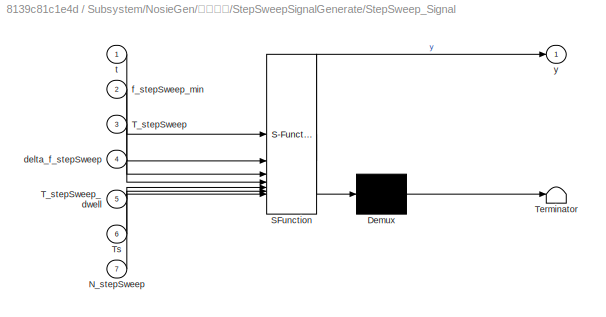
BLOCK [SubSystem] Subsystem/NosieGen/干扰方式/StepSweepSignalGenerate/StepSweep_Signal
  ErrorFcn = Stateflow.Translate.translate
  LibrarySourceBlock = simulink/User-Defined\nFunctions/MATLAB Function
  PermitHierarchicalResolution = ExplicitOnly
  SFBlockType = MATLAB Function
  TreatAsAtomicUnit = on
BLOCK [Demux] Subsystem/NosieGen/干扰方式/StepSweepSignalGenerate/StepSweep_Signal/ Demux 
  Outputs = 1
BLOCK [S-Function] Subsystem/NosieGen/干扰方式/StepSweepSignalGenerate/StepSweep_Signal/ SFunction 
  EnableBusSupport = on
  FunctionName = sf_sfun
  PortCounts = [7 2]
  SFcnIsStateOwnerBlock = off
  SFunctionDeploymentMode = off
  Tag = Stateflow S-Function 8
BLOCK [Terminator] Subsystem/NosieGen/干扰方式/StepSweepSignalGenerate/StepSweep_Signal/ Terminator 
BLOCK [Inport] Subsystem/NosieGen/干扰方式/StepSweepSignalGenerate/StepSweep_Signal/N_stepSweep
  Port = 7
BLOCK [Inport] Subsystem/NosieGen/干扰方式/StepSweepSignalGenerate/StepSweep_Signal/T_stepSweep
  Port = 3
BLOCK [Inport] Subsystem/NosieGen/干扰方式/StepSweepSignalGenerate/StepSweep_Signal/T_stepSweep_dwell
  Port = 5
BLOCK [Inport] Subsystem/NosieGen/干扰方式/StepSweepSignalGenerate/StepSweep_Signal/Ts
  Port = 6
BLOCK [Inport] Subsystem/NosieGen/干扰方式/StepSweepSignalGenerate/StepSweep_Signal/delta_f_stepSweep
  Port = 4
BLOCK [Inport] Subsystem/NosieGen/干扰方式/StepSweepSignalGenerate/StepSweep_Signal/f_stepSweep_min
  Port = 2
BLOCK [Inport] Subsystem/NosieGen/干扰方式/StepSweepSignalGenerate/StepSweep_Signal/t
BLOCK [Outport] Subsystem/NosieGen/干扰方式/StepSweepSignalGenerate/StepSweep_Signal/y
BLOCK [SubSystem] Subsystem/NosieGen/干扰方式/Switch Case Action Subsystem
  TreatAsAtomicUnit = on
BLOCK [ActionPort] Subsystem/NosieGen/干扰方式/Switch Case Action Subsystem/Action Port
  ActionPortLabel = case [ 1 ]:
BLOCK [Inport] Subsystem/NosieGen/干扰方式/Switch Case Action Subsystem/ChirpSignalOfBaseband
BLOCK [Outport] Subsystem/NosieGen/干扰方式/Switch Case Action Subsystem/Out1
BLOCK [SwitchCase] Subsystem/NosieGen/干扰方式/Switch Case2
  CaseConditions = {1,2,3}
BLOCK [Constant] Subsystem/NosieGen/干扰方式控制位
  NameLocation = right
  SampleTime = Inf
  Value = model.Parameters.NoiseGen.Control.Jamming
BLOCK [SubSystem] Subsystem/NosieGen/干扰源
BLOCK [Reference] Subsystem/NosieGen/干扰源/Band-Limited White Noise  REF=simulink/Sources/Band-Limited
White Noise
  SourceBlock = simulink/Sources/Band-Limited\nWhite Noise
  SourceType = Band-Limited White Noise.
BLOCK [Constant] Subsystem/NosieGen/干扰源/Constant
  SampleTime = model.Parameters.NoiseGen.NoiseTs
  Value = 0
BLOCK [SubSystem] Subsystem/NosieGen/干扰源/If Action Subsystem
  TreatAsAtomicUnit = on
BLOCK [ActionPort] Subsystem/NosieGen/干扰源/If Action Subsystem/Action Port
  ActionPortLabel = case [ 1 ]:
BLOCK [Inport] Subsystem/NosieGen/干扰源/If Action Subsystem/In1
BLOCK [Outport] Subsystem/NosieGen/干扰源/If Action Subsystem/Out1
BLOCK [SubSystem] Subsystem/NosieGen/干扰源/If Action Subsystem1
  TreatAsAtomicUnit = on
BLOCK [ActionPort] Subsystem/NosieGen/干扰源/If Action Subsystem1/Action Port
  ActionPortLabel = case [ 2 ]:
BLOCK [Inport] Subsystem/NosieGen/干扰源/If Action Subsystem1/Binary_Random_Signal
BLOCK [Outport] Subsystem/NosieGen/干扰源/If Action Subsystem1/Out1
BLOCK [SubSystem] Subsystem/NosieGen/干扰源/If Action Subsystem2
  TreatAsAtomicUnit = on
BLOCK [ActionPort] Subsystem/NosieGen/干扰源/If Action Subsystem2/Action Port
  ActionPortLabel = case [ 3 ]:
BLOCK [Outport] Subsystem/NosieGen/干扰源/If Action Subsystem2/Out1
BLOCK [Inport] Subsystem/NosieGen/干扰源/If Action Subsystem2/monophonic
BLOCK [SubSystem] Subsystem/NosieGen/干扰源/If Action Subsystem3
  TreatAsAtomicUnit = on
BLOCK [ActionPort] Subsystem/NosieGen/干扰源/If Action Subsystem3/Action Port
  ActionPortLabel = case [ 4 ]:
BLOCK [Inport] Subsystem/NosieGen/干扰源/If Action Subsystem3/Input
BLOCK [Outport] Subsystem/NosieGen/干扰源/If Action Subsystem3/Out1
BLOCK [SubSystem] Subsystem/NosieGen/干扰源/If Action Subsystem4
  TreatAsAtomicUnit = on
BLOCK [ActionPort] Subsystem/NosieGen/干扰源/If Action Subsystem4/Action Port
  ActionPortLabel = case [ 5 ]:
BLOCK [Inport] Subsystem/NosieGen/干扰源/If Action Subsystem4/Input
BLOCK [Outport] Subsystem/NosieGen/干扰源/If Action Subsystem4/Out1
BLOCK [SubSystem] Subsystem/NosieGen/干扰源/If Action Subsystem5
  TreatAsAtomicUnit = on
BLOCK [ActionPort] Subsystem/NosieGen/干扰源/If Action Subsystem5/Action Port
  ActionPortLabel = case [ 0 ]:
BLOCK [Inport] Subsystem/NosieGen/干扰源/If Action Subsystem5/In1
BLOCK [Outport] Subsystem/NosieGen/干扰源/If Action Subsystem5/Out1
BLOCK [Inport] Subsystem/NosieGen/干扰源/In1
BLOCK [Merge] Subsystem/NosieGen/干扰源/Merge
  Inputs = 6
BLOCK [SubSystem] Subsystem/NosieGen/干扰源/Monophonic Sine Noise
BLOCK [Constant] Subsystem/NosieGen/干扰源/Monophonic Sine Noise/Constant
  Value = model.Parameters.NoiseGen.SineNoisePhi0
BLOCK [Constant] Subsystem/NosieGen/干扰源/Monophonic Sine Noise/Constant1
  Value = model.Parameters.NoiseGen.SineNoiseF
BLOCK [Constant] Subsystem/NosieGen/干扰源/Monophonic Sine Noise/Constant2
  Value = model.Parameters.NoiseGen.SineNoiseA
BLOCK [Constant] Subsystem/NosieGen/干扰源/Monophonic Sine Noise/Constant3
  Value = model.Parameters.NoiseGen.SineNoiseFreqNum
BLOCK [Constant] Subsystem/NosieGen/干扰源/Monophonic Sine Noise/Constant4
  Value = model.Parameters.NoiseGen.SineNoiseOtherFreq
BLOCK [Constant] Subsystem/NosieGen/干扰源/Monophonic Sine Noise/Constant5
  Value = model.Parameters.NoiseGen.SineNoiseOtherAmplitude
BLOCK [Constant] Subsystem/NosieGen/干扰源/Monophonic Sine Noise/Constant6
  Value = model.Parameters.NoiseGen.SineNoiseMulti_selection
BLOCK [DigitalClock] Subsystem/NosieGen/干扰源/Monophonic Sine Noise/Digital Clock
  SampleTime = model.Parameters.NoiseGen.NoiseTs
BLOCK [DigitalClock] Subsystem/NosieGen/干扰源/Monophonic Sine Noise/Digital Clock1
  SampleTime = model.Parameters.NoiseGen.NoiseTs
BLOCK [If] Subsystem/NosieGen/干扰源/Monophonic Sine Noise/If
  IfExpression = u1 == 1
BLOCK [SubSystem] Subsystem/NosieGen/干扰源/Monophonic Sine Noise/If Action Subsystem1
  TreatAsAtomicUnit = on
BLOCK [ActionPort] Subsystem/NosieGen/干扰源/Monophonic Sine Noise/If Action Subsystem1/Action Port
  ActionPortLabel = else
BLOCK [Outport] Subsystem/NosieGen/干扰源/Monophonic Sine Noise/If Action Subsystem1/Out1
BLOCK [Inport] Subsystem/NosieGen/干扰源/Monophonic Sine Noise/If Action Subsystem1/monophonic
BLOCK [SubSystem] Subsystem/NosieGen/干扰源/Monophonic Sine Noise/If Action Subsystem5
  TreatAsAtomicUnit = on
BLOCK [ActionPort] Subsystem/NosieGen/干扰源/Monophonic Sine Noise/If Action Subsystem5/Action Port
  ActionPortLabel = if(u1 == 1)
BLOCK [Inport] Subsystem/NosieGen/干扰源/Monophonic Sine Noise/If Action Subsystem5/Multitone_multiplicative_coefficient
BLOCK [Outport] Subsystem/NosieGen/干扰源/Monophonic Sine Noise/If Action Subsystem5/Out1
BLOCK [Merge] Subsystem/NosieGen/干扰源/Monophonic Sine Noise/Merge
BLOCK [SubSystem] Subsystem/NosieGen/干扰源/Monophonic Sine Noise/Monophonic_Generate
  ErrorFcn = Stateflow.Translate.translate
  LibrarySourceBlock = simulink/User-Defined\nFunctions/MATLAB Function
  PermitHierarchicalResolution = ExplicitOnly
  SFBlockType = MATLAB Function
  TreatAsAtomicUnit = on
BLOCK [Demux] Subsystem/NosieGen/干扰源/Monophonic Sine Noise/Monophonic_Generate/ Demux 
  Outputs = 1
BLOCK [S-Function] Subsystem/NosieGen/干扰源/Monophonic Sine Noise/Monophonic_Generate/ SFunction 
  EnableBusSupport = on
  FunctionName = sf_sfun
  PortCounts = [4 2]
  SFcnIsStateOwnerBlock = off
  SFunctionDeploymentMode = off
  Tag = Stateflow S-Function 3
BLOCK [Terminator] Subsystem/NosieGen/干扰源/Monophonic Sine Noise/Monophonic_Generate/ Terminator 
BLOCK [Inport] Subsystem/NosieGen/干扰源/Monophonic Sine Noise/Monophonic_Generate/A
  Port = 2
BLOCK [Inport] Subsystem/NosieGen/干扰源/Monophonic Sine Noise/Monophonic_Generate/freq
  Port = 3
BLOCK [Outport] Subsystem/NosieGen/干扰源/Monophonic Sine Noise/Monophonic_Generate/monophonic
BLOCK [Inport] Subsystem/NosieGen/干扰源/Monophonic Sine Noise/Monophonic_Generate/phi0
  Port = 4
BLOCK [Inport] Subsystem/NosieGen/干扰源/Monophonic Sine Noise/Monophonic_Generate/t
BLOCK [SubSystem] Subsystem/NosieGen/干扰源/Monophonic Sine Noise/Multitone_Interference_Generate
  ErrorFcn = Stateflow.Translate.translate
  LibrarySourceBlock = simulink/User-Defined\nFunctions/MATLAB Function
  PermitHierarchicalResolution = ExplicitOnly
  SFBlockType = MATLAB Function
  TreatAsAtomicUnit = on
BLOCK [Demux] Subsystem/NosieGen/干扰源/Monophonic Sine Noise/Multitone_Interference_Generate/ Demux 
  Outputs = 1
BLOCK [S-Function] Subsystem/NosieGen/干扰源/Monophonic Sine Noise/Multitone_Interference_Generate/ SFunction 
  EnableBusSupport = on
  FunctionName = sf_sfun
  PortCounts = [4 2]
  SFcnIsStateOwnerBlock = off
  SFunctionDeploymentMode = off
  Tag = Stateflow S-Function 11
BLOCK [Terminator] Subsystem/NosieGen/干扰源/Monophonic Sine Noise/Multitone_Interference_Generate/ Terminator 
BLOCK [Outport] Subsystem/NosieGen/干扰源/Monophonic Sine Noise/Multitone_Interference_Generate/Multitone_interference
BLOCK [Inport] Subsystem/NosieGen/干扰源/Monophonic Sine Noise/Multitone_Interference_Generate/SineNoiseAmplitude
  Port = 3
BLOCK [Inport] Subsystem/NosieGen/干扰源/Monophonic Sine Noise/Multitone_Interference_Generate/SineNoiseFreq
  Port = 2
BLOCK [Inport] Subsystem/NosieGen/干扰源/Monophonic Sine Noise/Multitone_Interference_Generate/SineNoiseFreqNum
BLOCK [Inport] Subsystem/NosieGen/干扰源/Monophonic Sine Noise/Multitone_Interference_Generate/t
  Port = 4
BLOCK [SpectrumAnalyzer] Subsystem/NosieGen/干扰源/Monophonic Sine Noise/Spectrum Analyzer1
  Commented = on
  NameLocation = right
  ScopeSpecificationString = spbscopes.SpectrumAnalyzerBlockCfg('CurrentConfiguration', extmgr.ConfigurationSet(extmgr.Configuration('Core','General UI',true),extmgr.Configuration('Core','Source UI',true),extmgr.Configuration('Sources','WiredSimulink',true),extmgr.Configuration('Visuals','Spectrum',true,'AxesProperties',struct('Color',{[0 0 0],[0 0 0]},'XColor',{[0.686274509803922 0.686274509803922 0.686274509803922],[0.68627...<+2835ch>
BLOCK [Outport] Subsystem/NosieGen/干扰源/Monophonic Sine Noise/multitone
BLOCK [Outport] Subsystem/NosieGen/干扰源/Out1
BLOCK [SubSystem] Subsystem/NosieGen/干扰源/PN MSK Noise
BLOCK [Buffer] Subsystem/NosieGen/干扰源/PN MSK Noise/Buffer
  N = 1
  OutputFrames = off
BLOCK [ComplexToRealImag] Subsystem/NosieGen/干扰源/PN MSK Noise/Complex to Real-Imag
BLOCK [Constant] Subsystem/NosieGen/干扰源/PN MSK Noise/Constant
  Value = model.Parameters.NoiseGen.PNMSKF
BLOCK [DigitalClock] Subsystem/NosieGen/干扰源/PN MSK Noise/Digital Clock
  SampleTime = model.Parameters.NoiseGen.NoiseTs
BLOCK [Reference] Subsystem/NosieGen/干扰源/PN MSK Noise/MSK Modulator Baseband  REF=commdigbbndcpm2/MSK
Modulator
Baseband
  SourceBlock = commdigbbndcpm2/MSK\nModulator\nBaseband
  SourceType = MSK Modulator Baseband
  UserDataPersistent = on
BLOCK [Outport] Subsystem/NosieGen/干扰源/PN MSK Noise/MSKSignal
  OutDataTypeStr = double
BLOCK [Reference] Subsystem/NosieGen/干扰源/PN MSK Noise/PN Sequence Generator  REF=commseqgen3/PN Sequence
Generator
  LibrarySourceBlock = commhdlsource/PN Sequence\nGenerator
  SourceBlock = commseqgen3/PN Sequence\nGenerator
  SourceType = PN Sequence Generator
BLOCK [SubSystem] Subsystem/NosieGen/干扰源/PN MSK Noise/Random Binary Modulation
  ErrorFcn = Stateflow.Translate.translate
  LibrarySourceBlock = simulink/User-Defined\nFunctions/MATLAB Function
  PermitHierarchicalResolution = ExplicitOnly
  SFBlockType = MATLAB Function
  TreatAsAtomicUnit = on
BLOCK [Demux] Subsystem/NosieGen/干扰源/PN MSK Noise/Random Binary Modulation/ Demux 
  Outputs = 1
BLOCK [S-Function] Subsystem/NosieGen/干扰源/PN MSK Noise/Random Binary Modulation/ SFunction 
  EnableBusSupport = on
  FunctionName = sf_sfun
  PortCounts = [3 2]
  SFcnIsStateOwnerBlock = off
  SFunctionDeploymentMode = off
  Tag = Stateflow S-Function 9
BLOCK [Terminator] Subsystem/NosieGen/干扰源/PN MSK Noise/Random Binary Modulation/ Terminator 
BLOCK [Outport] Subsystem/NosieGen/干扰源/PN MSK Noise/Random Binary Modulation/MSKSignal
BLOCK [Inport] Subsystem/NosieGen/干扰源/PN MSK Noise/Random Binary Modulation/cita_k
BLOCK [Inport] Subsystem/NosieGen/干扰源/PN MSK Noise/Random Binary Modulation/freq
  Port = 3
BLOCK [Inport] Subsystem/NosieGen/干扰源/PN MSK Noise/Random Binary Modulation/t
  Port = 2
BLOCK [Reference] Subsystem/NosieGen/干扰源/PN MSK Noise/Unipolar to Bipolar Converter1  REF=commutil2/Unipolar to
Bipolar
Converter
  SourceBlock = commutil2/Unipolar to\nBipolar\nConverter
  SourceType = Unipolar to Bipolar Converter
BLOCK [SubSystem] Subsystem/NosieGen/干扰源/Random Binary Noise
BLOCK [Reference] Subsystem/NosieGen/干扰源/Random Binary Noise/Bernoulli Binary Generator  REF=commrandsrc3/Bernoulli Binary
Generator
  SourceBlock = commrandsrc3/Bernoulli Binary\nGenerator
  SourceType = Bernoulli Binary Generator
BLOCK [Reference] Subsystem/NosieGen/干扰源/Random Binary Noise/Bernoulli Binary Generator1  REF=commrandsrc3/Bernoulli Binary
Generator
  Commented = on
  SourceBlock = commrandsrc3/Bernoulli Binary\nGenerator
  SourceType = Bernoulli Binary Generator
BLOCK [Constant] Subsystem/NosieGen/干扰源/Random Binary Noise/Constant
  Value = model.Parameters.NoiseGen.RandBPFA
BLOCK [Constant] Subsystem/NosieGen/干扰源/Random Binary Noise/Constant1
  Value = model.Parameters.NoiseGen.RandBPFF
BLOCK [Constant] Subsystem/NosieGen/干扰源/Random Binary Noise/Constant2
  Value = model.Parameters.NoiseGen.RandBPFPhi0
BLOCK [DigitalClock] Subsystem/NosieGen/干扰源/Random Binary Noise/Digital Clock
  SampleTime = model.Parameters.NoiseGen.NoiseTs
BLOCK [Outport] Subsystem/NosieGen/干扰源/Random Binary Noise/Jt
BLOCK [SubSystem] Subsystem/NosieGen/干扰源/Random Binary Noise/Random Binary Modulation
  ErrorFcn = Stateflow.Translate.translate
  LibrarySourceBlock = simulink/User-Defined\nFunctions/MATLAB Function
  PermitHierarchicalResolution = ExplicitOnly
  SFBlockType = MATLAB Function
  TreatAsAtomicUnit = on
BLOCK [Demux] Subsystem/NosieGen/干扰源/Random Binary Noise/Random Binary Modulation/ Demux 
  Outputs = 1
BLOCK [S-Function] Subsystem/NosieGen/干扰源/Random Binary Noise/Random Binary Modulation/ SFunction 
  EnableBusSupport = on
  FunctionName = sf_sfun
  PortCounts = [5 2]
  SFcnIsStateOwnerBlock = off
  SFunctionDeploymentMode = off
  Tag = Stateflow S-Function 6
BLOCK [Terminator] Subsystem/NosieGen/干扰源/Random Binary Noise/Random Binary Modulation/ Terminator 
BLOCK [Inport] Subsystem/NosieGen/干扰源/Random Binary Noise/Random Binary Modulation/A
  Port = 3
BLOCK [Inport] Subsystem/NosieGen/干扰源/Random Binary Noise/Random Binary Modulation/Jn
BLOCK [Outport] Subsystem/NosieGen/干扰源/Random Binary Noise/Random Binary Modulation/Jt
BLOCK [Inport] Subsystem/NosieGen/干扰源/Random Binary Noise/Random Binary Modulation/freq
  Port = 4
BLOCK [Inport] Subsystem/NosieGen/干扰源/Random Binary Noise/Random Binary Modulation/phi0
  Port = 5
BLOCK [Inport] Subsystem/NosieGen/干扰源/Random Binary Noise/Random Binary Modulation/t
  Port = 2
BLOCK [RateTransition] Subsystem/NosieGen/干扰源/Random Binary Noise/Rate Transition
BLOCK [SubSystem] Subsystem/NosieGen/干扰源/Random Binary Noise/Unipolar to bipolar
  ErrorFcn = Stateflow.Translate.translate
  LibrarySourceBlock = simulink/User-Defined\nFunctions/MATLAB Function
  PermitHierarchicalResolution = ExplicitOnly
  SFBlockType = MATLAB Function
  TreatAsAtomicUnit = on
BLOCK [Demux] Subsystem/NosieGen/干扰源/Random Binary Noise/Unipolar to bipolar/ Demux 
  Outputs = 1
BLOCK [S-Function] Subsystem/NosieGen/干扰源/Random Binary Noise/Unipolar to bipolar/ SFunction 
  EnableBusSupport = on
  FunctionName = sf_sfun
  PortCounts = [1 2]
  SFcnIsStateOwnerBlock = off
  SFunctionDeploymentMode = off
  Tag = Stateflow S-Function 7
BLOCK [Terminator] Subsystem/NosieGen/干扰源/Random Binary Noise/Unipolar to bipolar/ Terminator 
BLOCK [Outport] Subsystem/NosieGen/干扰源/Random Binary Noise/Unipolar to bipolar/Jn
BLOCK [Inport] Subsystem/NosieGen/干扰源/Random Binary Noise/Unipolar to bipolar/u
BLOCK [SubSystem] Subsystem/NosieGen/干扰源/Subsystem
BLOCK [Reference] Subsystem/NosieGen/干扰源/Subsystem/Band-Limited White Noise  REF=simulink/Sources/Band-Limited
White Noise
  SourceBlock = simulink/Sources/Band-Limited\nWhite Noise
  SourceType = Band-Limited White Noise.
BLOCK [Reference] Subsystem/NosieGen/干扰源/Subsystem/Filter  REF=dsparch4/Biquad Filter
  SourceBlock = dsparch4/Biquad Filter
  SourceType = Biquad Filter
  Tag = BlockMethodSubSystem
  UserDataPersistent = on
BLOCK [Outport] Subsystem/NosieGen/干扰源/Subsystem/Input
BLOCK [SwitchCase] Subsystem/NosieGen/干扰源/Switch Case
  CaseConditions = {0,1,2,3,4,5}
BLOCK [Constant] Subsystem/NosieGen/干扰源控制位
  SampleTime = Inf
  Value = model.Parameters.NoiseGen.Control.Source
BLOCK [SubSystem] Subsystem/NosieGen/调制方式
BLOCK [SubSystem] Subsystem/NosieGen/调制方式/AM
BLOCK [SubSystem] Subsystem/NosieGen/调制方式/AM/AM_Carrier
  ErrorFcn = Stateflow.Translate.translate
  LibrarySourceBlock = simulink/User-Defined\nFunctions/MATLAB Function
  PermitHierarchicalResolution = ExplicitOnly
  SFBlockType = MATLAB Function
  TreatAsAtomicUnit = on
BLOCK [Demux] Subsystem/NosieGen/调制方式/AM/AM_Carrier/ Demux 
  Outputs = 1
BLOCK [S-Function] Subsystem/NosieGen/调制方式/AM/AM_Carrier/ SFunction 
  EnableBusSupport = on
  FunctionName = sf_sfun
  PortCounts = [5 2]
  SFcnIsStateOwnerBlock = off
  SFunctionDeploymentMode = off
  Tag = Stateflow S-Function 4
BLOCK [Terminator] Subsystem/NosieGen/调制方式/AM/AM_Carrier/ Terminator 
BLOCK [Inport] Subsystem/NosieGen/调制方式/AM/AM_Carrier/A
  Port = 2
BLOCK [Inport] Subsystem/NosieGen/调制方式/AM/AM_Carrier/Ma
  Port = 5
BLOCK [Inport] Subsystem/NosieGen/调制方式/AM/AM_Carrier/carrier_low_freq
  Port = 4
BLOCK [Inport] Subsystem/NosieGen/调制方式/AM/AM_Carrier/freq
  Port = 3
BLOCK [Inport] Subsystem/NosieGen/调制方式/AM/AM_Carrier/t
BLOCK [Outport] Subsystem/NosieGen/调制方式/AM/AM_Carrier/y
BLOCK [Outport] Subsystem/NosieGen/调制方式/AM/AM_Signal
BLOCK [Constant] Subsystem/NosieGen/调制方式/AM/Constant
  Value = model.Parameters.NoiseGen.Modulator.AMA
BLOCK [Constant] Subsystem/NosieGen/调制方式/AM/Constant1
  Value = model.Parameters.NoiseGen.Modulator.AMF
BLOCK [Constant] Subsystem/NosieGen/调制方式/AM/Constant2
  Value = model.Parameters.NoiseGen.Modulator.Ma
BLOCK [DigitalClock] Subsystem/NosieGen/调制方式/AM/Digital Clock
  SampleTime = model.Parameters.NoiseGen.NoiseTs
BLOCK [Inport] Subsystem/NosieGen/调制方式/AM/Jammer Source
BLOCK [SubSystem] Subsystem/NosieGen/调制方式/FM
BLOCK [Constant] Subsystem/NosieGen/调制方式/FM/Constant
  Value = model.Parameters.NoiseGen.Modulator.FMA
BLOCK [Constant] Subsystem/NosieGen/调制方式/FM/Constant1
  Value = model.Parameters.NoiseGen.Modulator.FMF
BLOCK [Constant] Subsystem/NosieGen/调制方式/FM/Constant2
  Value = model.Parameters.NoiseGen.Modulator.FMPhi0
BLOCK [Constant] Subsystem/NosieGen/调制方式/FM/Constant3
  Value = model.Parameters.NoiseGen.Modulator.FMK
BLOCK [DigitalClock] Subsystem/NosieGen/调制方式/FM/Digital Clock
  SampleTime = model.Parameters.NoiseGen.NoiseTs
BLOCK [Outport] Subsystem/NosieGen/调制方式/FM/FM_Signal
BLOCK [Inport] Subsystem/NosieGen/调制方式/FM/InputSignal
BLOCK [SubSystem] Subsystem/NosieGen/调制方式/FM/MATLAB Function
  ErrorFcn = Stateflow.Translate.translate
  LibrarySourceBlock = simulink/User-Defined\nFunctions/MATLAB Function
  PermitHierarchicalResolution = ExplicitOnly
  SFBlockType = MATLAB Function
  TreatAsAtomicUnit = on
BLOCK [Demux] Subsystem/NosieGen/调制方式/FM/MATLAB Function/ Demux 
  Outputs = 1
BLOCK [S-Function] Subsystem/NosieGen/调制方式/FM/MATLAB Function/ SFunction 
  EnableBusSupport = on
  FunctionName = sf_sfun
  PortCounts = [6 2]
  SFcnIsStateOwnerBlock = off
  SFunctionDeploymentMode = off
  Tag = Stateflow S-Function 5
BLOCK [Terminator] Subsystem/NosieGen/调制方式/FM/MATLAB Function/ Terminator 
BLOCK [Inport] Subsystem/NosieGen/调制方式/FM/MATLAB Function/A
  Port = 3
BLOCK [Inport] Subsystem/NosieGen/调制方式/FM/MATLAB Function/K
  Port = 6
BLOCK [Inport] Subsystem/NosieGen/调制方式/FM/MATLAB Function/freq
  Port = 4
BLOCK [Inport] Subsystem/NosieGen/调制方式/FM/MATLAB Function/phi0
  Port = 5
BLOCK [Inport] Subsystem/NosieGen/调制方式/FM/MATLAB Function/signal
  Port = 2
BLOCK [Inport] Subsystem/NosieGen/调制方式/FM/MATLAB Function/t
BLOCK [Outport] Subsystem/NosieGen/调制方式/FM/MATLAB Function/y
BLOCK [SubSystem] Subsystem/NosieGen/调制方式/If Action Subsystem3
  TreatAsAtomicUnit = on
BLOCK [ActionPort] Subsystem/NosieGen/调制方式/If Action Subsystem3/Action Port
  ActionPortLabel = default:
BLOCK [Inport] Subsystem/NosieGen/调制方式/If Action Subsystem3/Jammer Source
BLOCK [Outport] Subsystem/NosieGen/调制方式/If Action Subsystem3/Out1
BLOCK [SubSystem] Subsystem/NosieGen/调制方式/If Action Subsystem4
  TreatAsAtomicUnit = on
BLOCK [Inport] Subsystem/NosieGen/调制方式/If Action Subsystem4/AM_Signal
BLOCK [ActionPort] Subsystem/NosieGen/调制方式/If Action Subsystem4/Action Port
  ActionPortLabel = case [ 1 ]:
BLOCK [Outport] Subsystem/NosieGen/调制方式/If Action Subsystem4/Out1
BLOCK [SubSystem] Subsystem/NosieGen/调制方式/If Action Subsystem5
  TreatAsAtomicUnit = on
BLOCK [ActionPort] Subsystem/NosieGen/调制方式/If Action Subsystem5/Action Port
  ActionPortLabel = case [ 2 ]:
BLOCK [Outport] Subsystem/NosieGen/调制方式/If Action Subsystem5/Out1
BLOCK [Inport] Subsystem/NosieGen/调制方式/If Action Subsystem5/PM_Signal
BLOCK [SubSystem] Subsystem/NosieGen/调制方式/If Action Subsystem6
  TreatAsAtomicUnit = on
BLOCK [ActionPort] Subsystem/NosieGen/调制方式/If Action Subsystem6/Action Port
  ActionPortLabel = case [ 3 ]:
BLOCK [Inport] Subsystem/NosieGen/调制方式/If Action Subsystem6/FM_Signal
BLOCK [Outport] Subsystem/NosieGen/调制方式/If Action Subsystem6/Out1
BLOCK [Inport] Subsystem/NosieGen/调制方式/In2
  NameLocation = right
  Port = 2
BLOCK [Inport] Subsystem/NosieGen/调制方式/InputSignal
BLOCK [Merge] Subsystem/NosieGen/调制方式/Merge1
  Inputs = 4
BLOCK [Outport] Subsystem/NosieGen/调制方式/Out1
BLOCK [SubSystem] Subsystem/NosieGen/调制方式/PM
BLOCK [Constant] Subsystem/NosieGen/调制方式/PM/Constant
  Value = model.Parameters.NoiseGen.Modulator.PMA
BLOCK [Constant] Subsystem/NosieGen/调制方式/PM/Constant1
  Value = model.Parameters.NoiseGen.Modulator.PMF
BLOCK [Constant] Subsystem/NosieGen/调制方式/PM/Constant2
  Value = model.Parameters.NoiseGen.Modulator.PMPhi0
BLOCK [Constant] Subsystem/NosieGen/调制方式/PM/Constant3
  Value = model.Parameters.NoiseGen.Modulator.PMK
BLOCK [DigitalClock] Subsystem/NosieGen/调制方式/PM/Digital Clock
  SampleTime = model.Parameters.NoiseGen.NoiseTs
BLOCK [Inport] Subsystem/NosieGen/调制方式/PM/InputSignal
BLOCK [SubSystem] Subsystem/NosieGen/调制方式/PM/MATLAB Function
  ErrorFcn = Stateflow.Translate.translate
  LibrarySourceBlock = simulink/User-Defined\nFunctions/MATLAB Function
  PermitHierarchicalResolution = ExplicitOnly
  SFBlockType = MATLAB Function
  TreatAsAtomicUnit = on
BLOCK [Demux] Subsystem/NosieGen/调制方式/PM/MATLAB Function/ Demux 
  Outputs = 1
BLOCK [S-Function] Subsystem/NosieGen/调制方式/PM/MATLAB Function/ SFunction 
  EnableBusSupport = on
  FunctionName = sf_sfun
  PortCounts = [6 2]
  SFcnIsStateOwnerBlock = off
  SFunctionDeploymentMode = off
  Tag = Stateflow S-Function 10
BLOCK [Terminator] Subsystem/NosieGen/调制方式/PM/MATLAB Function/ Terminator 
BLOCK [Inport] Subsystem/NosieGen/调制方式/PM/MATLAB Function/A
  Port = 3
BLOCK [Inport] Subsystem/NosieGen/调制方式/PM/MATLAB Function/K
  Port = 5
BLOCK [Inport] Subsystem/NosieGen/调制方式/PM/MATLAB Function/freq
  Port = 4
BLOCK [Inport] Subsystem/NosieGen/调制方式/PM/MATLAB Function/phi0
  Port = 6
BLOCK [Inport] Subsystem/NosieGen/调制方式/PM/MATLAB Function/signal
  Port = 2
BLOCK [Inport] Subsystem/NosieGen/调制方式/PM/MATLAB Function/t
BLOCK [Outport] Subsystem/NosieGen/调制方式/PM/MATLAB Function/y
BLOCK [Outport] Subsystem/NosieGen/调制方式/PM/PM_Signal
BLOCK [SwitchCase] Subsystem/NosieGen/调制方式/Switch Case1
  CaseConditions = {1,2,3}
BLOCK [Constant] Subsystem/NosieGen/调制方式控制位
  NameLocation = right
  SampleTime = Inf
  Value = model.Parameters.NoiseGen.Control.Modulator
BLOCK [Outport] Subsystem/Out1
  NameLocation = top
BLOCK [Concatenate] Subsystem/Vector Concatenate
  ConcatenateDimension = 2
  Mode = Multidimensional array
  NumInputs = 4
BLOCK [ToWorkspace] To Workspace
  FixptAsFi = on
  MaxDataPoints = inf
  SampleTime = -1
  SaveFormat = Timeseries
  VariableName = Signal_Source_Generator
BLOCK [ToWorkspace] To Workspace1
  FixptAsFi = on
  MaxDataPoints = inf
  SampleTime = -1
  SaveFormat = Timeseries
  VariableName = Decoder
BLOCK [ToWorkspace] To Workspace2
  FixptAsFi = on
  MaxDataPoints = inf
  SampleTime = -1
  SaveFormat = Timeseries
  VariableName = Modulation_Signal_Branch_1
BLOCK [ToWorkspace] To Workspace3
  FixptAsFi = on
  MaxDataPoints = inf
  SampleTime = -1
  SaveFormat = Timeseries
  VariableName = Modulation_Signal_Branch_2
BLOCK [ToWorkspace] To Workspace4
  FixptAsFi = on
  MaxDataPoints = inf
  SampleTime = -1
  SaveFormat = Timeseries
  VariableName = CodeBER
BLOCK [SubSystem] 信源相干解调
  NameLocation = top
BLOCK [Inport] 信源相干解调/Carrier
BLOCK [Math] 信源相干解调/Conj2
  Operator = conj
BLOCK [Inport] 信源相干解调/In1
  Port = 3
BLOCK [Inport] 信源相干解调/In2
  Port = 2
BLOCK [Inport] 信源相干解调/In3
  Port = 4
BLOCK [Inport] 信源相干解调/In4
  Port = 5
BLOCK [Outport] 信源相干解调/Out1
BLOCK [Outport] 信源相干解调/Out2
  Port = 2
BLOCK [Outport] 信源相干解调/Out3
  Port = 3
BLOCK [Outport] 信源相干解调/Out4
  Port = 4
BLOCK [Product] 信源相干解调/Product1
BLOCK [Product] 信源相干解调/Product2
BLOCK [Product] 信源相干解调/Product3
BLOCK [Product] 信源相干解调/Product4
BLOCK [SubSystem] 跳频调制
BLOCK [Reference] 跳频调制/Bit to Integer Converter  REF=simulink/Logic and Bit
Operations/Bit to Integer
Converter
  SourceBlock = simulink/Logic and Bit\nOperations/Bit to Integer\nConverter
  SourceType = Bit to Integer Converter
BLOCK [Reference] 跳频调制/M-FSK Modulator Baseband1  REF=commdigbbndfm2/M-FSK
Modulator
Baseband
  SourceBlock = commdigbbndfm2/M-FSK\nModulator\nBaseband
  SourceType = M-FSK Modulator Baseband
  UserDataPersistent = on
BLOCK [Inport] 跳频调制/Modulated Signal
BLOCK [Inport] 跳频调制/Modulated Signal1
  Port = 2
BLOCK [Reference] 跳频调制/PN Sequence Generator1  REF=commseqgen3/PN Sequence
Generator
  SourceBlock = commseqgen3/PN Sequence\nGenerator
  SourceType = PN Sequence Generator
BLOCK [Outport] 跳频调制/PN_Out
  IconDisplay = Signal name
  Port = 2
BLOCK [Product] 跳频调制/Product
BLOCK [Product] 跳频调制/Product1
BLOCK [Outport] 跳频调制/RF Signal
BLOCK [Outport] 跳频调制/RF Signal1
  Port = 3
ANNOTATION (root): speed1
ANNOTATION (root): speed2
ANNOTATION (root): speed3
ANNOTATION (root): MIMO-OFDM联合仿真（只针对信源）
ANNOTATION (root): 小结：此处需要注意在仿真时，MIMO路径时延必须为蓝色线信号的整数倍，否则由于延时模块的离散性，可能会导致载波相干解调时无法同步
ANNOTATION (root): 新发现：对于堆栈由大变小，当大堆栈的大小不是小堆栈大小的整数倍时，同样会产生时延
ANNOTATION (root): 对于QPSK和OQPSK，随机数生成器每帧的样本数需要小于等于4
ANNOTATION (root): 此处延时0.0024，延时75个样本
ANNOTATION (root): 此处延时6e-4
ANNOTATION (root): 此处无延时
ANNOTATION Subsystem/NosieGen: 功率估计部分
ANNOTATION Subsystem/NosieGen: 干扰方式
ANNOTATION Subsystem/NosieGen: 干扰方式模块功能： 由调制方式控制位来控制调制方式，控制位变化范围是[0-4] 控制位==0的时候，调制方式模块不工作 控制位==1的时候，是线性跳频干扰 控制位==2的时候，是步进跳频干扰 控制位不在上面集合范围的时候，警告
ANNOTATION Subsystem/NosieGen: 干扰源
ANNOTATION Subsystem/NosieGen: 干扰源模块功能： 由干扰源控制位来控制干扰源的波形，控制变换范围是[1-3] 控制位==1的时候，输出高斯白噪声 控制位==2的时候，输出随机二元码调制噪声 控制位==3的时候，输出正弦波 控制位不在上面的集合的时候，没有输出
ANNOTATION Subsystem/NosieGen: 调制方式
ANNOTATION Subsystem/NosieGen: 调制方式模块功能： 由调制方式控制位来控制调制方式，控制位变化范围是[0-4] 控制位==0的时候，调制方式模块不工作 控制位==1的时候，通过AM 控制位==2的时候，通过PM 控制位==3的时候，通过FM 控制位==4的时候，通过增益15 控制位不在上面集合范围的时候，警告
ANNOTATION Subsystem/NosieGen/干扰方式/ChirpBasebandSignalGenerate: 线性调频模块：线性调频公式(y=exp(2*pi*(fmin*t+0.5*k_chirp*t^2))) 输入参数： 1.fmin,为线性调频信号的起始频率 2.fmax为线性调频信号的终止频率 3.T_chirp为线性调频信号的调频时间 斜率k_sweep = (f_min-f_max)/T_chirp
ANNOTATION Subsystem/NosieGen/干扰方式/ChirpBasebandSignalGenerate: 线性调频模块
ANNOTATION Subsystem/NosieGen/干扰方式/StepSweepSignalGenerate: 步进调频模块
ANNOTATION Subsystem/NosieGen/干扰源/PN MSK Noise: MSK模块： MSK的公式: y = exp(2*pi*fc*t+pi*ak*t/(2Ts)+phi_k) 输入参数： 1. fc:为MSK的中心频率 2. ak:为MSK的第k码元值，数值[-1或者+1] 3. Ts:为MSK的码元周期 4. phi_k:为MSK的第k个码元的修正相位 5. phi_0:为MSK的初始相位
ANNOTATION Subsystem/NosieGen/干扰源/PN MSK Noise: MSK模块
ANNOTATION Subsystem/NosieGen/干扰源/Random Binary Noise: 改模块采用的是概率为贝努利分布的随机二进制数，随机二元码调制噪声的公式如下： Jt = Am*Jn*cos(2*pi*fj*t+phi0) 本质上是数字调相信号，相位翻转180°
ANNOTATION Subsystem/NosieGen/干扰源/Random Binary Noise: 随机二进制调制噪声
ANNOTATION 信源相干解调: 接收端信源的相干解调
ANNOTATION 跳频调制: 产生跳频序列，并生成基带跳频，跳频间隔是1MHz,跳频范围是[0.5MHz,7.5MHz]
ANNOTATION 跳频调制: 此处无延时
ANNOTATION 跳频调制: 跳频
ANNOTATION 跳频调制: 跳频基带信号
LINE Baseband Signal Selector Rx/Constant:1 -> Baseband Signal Selector Rx/If:1
LINE Baseband Signal Selector Rx/If Action Subsystem1/In1:1 -> Baseband Signal Selector Rx/If Action Subsystem1/M-PSK Demodulator Baseband:1
LINE Baseband Signal Selector Rx/If Action Subsystem1/M-PSK Demodulator Baseband:1 -> Baseband Signal Selector Rx/If Action Subsystem1/Out1:1
LINE Baseband Signal Selector Rx/If Action Subsystem1:1 -> Baseband Signal Selector Rx/Merge:2
LINE Baseband Signal Selector Rx/If Action Subsystem4/In1:1 -> Baseband Signal Selector Rx/If Action Subsystem4/Rectangular QAM Demodulator Baseband:1
LINE Baseband Signal Selector Rx/If Action Subsystem4/Rectangular QAM Demodulator Baseband:1 -> Baseband Signal Selector Rx/If Action Subsystem4/Out1:1
LINE Baseband Signal Selector Rx/If Action Subsystem4:1 -> Baseband Signal Selector Rx/Merge:1
LINE Baseband Signal Selector Rx/If Action Subsystem5/In1:1 -> Baseband Signal Selector Rx/If Action Subsystem5/Rectangular QAM Demodulator Baseband:1
LINE Baseband Signal Selector Rx/If Action Subsystem5/Rectangular QAM Demodulator Baseband:1 -> Baseband Signal Selector Rx/If Action Subsystem5/Out1:1
LINE Baseband Signal Selector Rx/If Action Subsystem5:1 -> Baseband Signal Selector Rx/Merge:3
LINE Baseband Signal Selector Rx/If:1 -> Baseband Signal Selector Rx/If Action Subsystem4:ifaction
LINE Baseband Signal Selector Rx/If:2 -> Baseband Signal Selector Rx/If Action Subsystem1:ifaction
LINE Baseband Signal Selector Rx/If:3 -> Baseband Signal Selector Rx/If Action Subsystem5:ifaction
NET Baseband Signal Selector Rx/In1:1 -> Baseband Signal Selector Rx/If Action Subsystem1:1, Baseband Signal Selector Rx/If Action Subsystem4:1, Baseband Signal Selector Rx/If Action Subsystem5:1
LINE Baseband Signal Selector Rx/Merge:1 -> Baseband Signal Selector Rx/Out1:1
LINE Baseband Signal Selector Rx:1 -> Merge:3
LINE Baseband Signal Selector Tx/Constant:1 -> Baseband Signal Selector Tx/If:1
LINE Baseband Signal Selector Tx/If Action Subsystem1/In1:1 -> Baseband Signal Selector Tx/If Action Subsystem1/M-PSK Modulator Baseband:1
LINE Baseband Signal Selector Tx/If Action Subsystem1/M-PSK Modulator Baseband:1 -> Baseband Signal Selector Tx/If Action Subsystem1/Out1:1
LINE Baseband Signal Selector Tx/If Action Subsystem1:1 -> Baseband Signal Selector Tx/Merge:2
LINE Baseband Signal Selector Tx/If Action Subsystem4/In1:1 -> Baseband Signal Selector Tx/If Action Subsystem4/Rectangular QAM Modulator Baseband:1
LINE Baseband Signal Selector Tx/If Action Subsystem4/Rectangular QAM Modulator Baseband:1 -> Baseband Signal Selector Tx/If Action Subsystem4/Out1:1
LINE Baseband Signal Selector Tx/If Action Subsystem4:1 -> Baseband Signal Selector Tx/Merge:1
LINE Baseband Signal Selector Tx/If Action Subsystem5/In1:1 -> Baseband Signal Selector Tx/If Action Subsystem5/Rectangular QAM Modulator Baseband1:1
LINE Baseband Signal Selector Tx/If Action Subsystem5/Rectangular QAM Modulator Baseband1:1 -> Baseband Signal Selector Tx/If Action Subsystem5/Out1:1
LINE Baseband Signal Selector Tx/If Action Subsystem5:1 -> Baseband Signal Selector Tx/Merge:3
LINE Baseband Signal Selector Tx/If:1 -> Baseband Signal Selector Tx/If Action Subsystem4:ifaction
LINE Baseband Signal Selector Tx/If:2 -> Baseband Signal Selector Tx/If Action Subsystem1:ifaction
LINE Baseband Signal Selector Tx/If:3 -> Baseband Signal Selector Tx/If Action Subsystem5:ifaction
NET Baseband Signal Selector Tx/In1:1 -> Baseband Signal Selector Tx/If Action Subsystem1:1, Baseband Signal Selector Tx/If Action Subsystem4:1, Baseband Signal Selector Tx/If Action Subsystem5:1
LINE Baseband Signal Selector Tx/Merge:1 -> Baseband Signal Selector Tx/Out1:1
LINE Baseband Signal Selector Tx:1 -> Merge1:1
LINE Bit Error Rate Calculation/Error Rate Calculation:1 -> Bit Error Rate Calculation/Out1:1
LINE Bit Error Rate Calculation/In1:1 -> Bit Error Rate Calculation/Integer to Bit Converter:1
LINE Bit Error Rate Calculation/In2:1 -> Bit Error Rate Calculation/Integer to Bit Converter1:1
LINE Bit Error Rate Calculation/Integer to Bit Converter1:1 -> Bit Error Rate Calculation/Error Rate Calculation:2
LINE Bit Error Rate Calculation/Integer to Bit Converter:1 -> Bit Error Rate Calculation/Error Rate Calculation:1
NET Bit Error Rate Calculation:1 -> Coded BER:1, To Workspace4:1
LINE Buffer1:1 -> OFDM Modulator:1
NET Buffer2:1 -> Baseband Signal Selector Rx:1, OQPSK Demodulator Baseband:1, QPSK Demodulator Baseband:1
LINE Buffer3:1 -> Matrix Interleaver:1
NET Buffer4:1 -> Baseband Signal Selector Tx:1, OQPSK Modulator Baseband:1, QPSK Modulator Baseband:1
LINE Buffer5:1 -> Delay3:1
NET Buffer6:1 -> Delay5:1, Delay:1
LINE ChannelParameterDimensionTransformation/Buffer10:1 -> ChannelParameterDimensionTransformation/Reshape11:1
LINE ChannelParameterDimensionTransformation/Buffer11:1 -> ChannelParameterDimensionTransformation/Reshape14:1
LINE ChannelParameterDimensionTransformation/Buffer12:1 -> ChannelParameterDimensionTransformation/Reshape15:1
LINE ChannelParameterDimensionTransformation/Buffer13:1 -> ChannelParameterDimensionTransformation/Reshape12:1
LINE ChannelParameterDimensionTransformation/Buffer14:1 -> ChannelParameterDimensionTransformation/Reshape13:1
LINE ChannelParameterDimensionTransformation/Buffer15:1 -> ChannelParameterDimensionTransformation/Reshape8:1
LINE ChannelParameterDimensionTransformation/Buffer16:1 -> ChannelParameterDimensionTransformation/Reshape9:1
LINE ChannelParameterDimensionTransformation/Buffer1:1 -> ChannelParameterDimensionTransformation/Reshape2:1
LINE ChannelParameterDimensionTransformation/Buffer2:1 -> ChannelParameterDimensionTransformation/Reshape3:1
LINE ChannelParameterDimensionTransformation/Buffer3:1 -> ChannelParameterDimensionTransformation/Reshape4:1
LINE ChannelParameterDimensionTransformation/Buffer4:1 -> ChannelParameterDimensionTransformation/Reshape5:1
LINE ChannelParameterDimensionTransformation/Buffer5:1 -> ChannelParameterDimensionTransformation/Reshape6:1
LINE ChannelParameterDimensionTransformation/Buffer6:1 -> ChannelParameterDimensionTransformation/Reshape7:1
LINE ChannelParameterDimensionTransformation/Buffer7:1 -> ChannelParameterDimensionTransformation/Reshape:1
LINE ChannelParameterDimensionTransformation/Buffer8:1 -> ChannelParameterDimensionTransformation/Reshape1:1
LINE ChannelParameterDimensionTransformation/Buffer9:1 -> ChannelParameterDimensionTransformation/Reshape10:1
LINE ChannelParameterDimensionTransformation/Constant10:1 -> ChannelParameterDimensionTransformation/Selector11:2
LINE ChannelParameterDimensionTransformation/Constant11:1 -> ChannelParameterDimensionTransformation/Selector9:2
LINE ChannelParameterDimensionTransformation/Constant12:1 -> ChannelParameterDimensionTransformation/Selector12:2
LINE ChannelParameterDimensionTransformation/Constant13:1 -> ChannelParameterDimensionTransformation/Selector14:2
LINE ChannelParameterDimensionTransformation/Constant14:1 -> ChannelParameterDimensionTransformation/Selector15:2
LINE ChannelParameterDimensionTransformation/Constant15:1 -> ChannelParameterDimensionTransformation/Selector13:2
LINE ChannelParameterDimensionTransformation/Constant16:1 -> ChannelParameterDimensionTransformation/Selector16:2
LINE ChannelParameterDimensionTransformation/Constant1:1 -> ChannelParameterDimensionTransformation/Selector5:2
LINE ChannelParameterDimensionTransformation/Constant2:1 -> ChannelParameterDimensionTransformation/Selector3:2
LINE ChannelParameterDimensionTransformation/Constant3:1 -> ChannelParameterDimensionTransformation/Selector1:2
LINE ChannelParameterDimensionTransformation/Constant4:1 -> ChannelParameterDimensionTransformation/Selector4:2
LINE ChannelParameterDimensionTransformation/Constant5:1 -> ChannelParameterDimensionTransformation/Selector6:2
LINE ChannelParameterDimensionTransformation/Constant6:1 -> ChannelParameterDimensionTransformation/Selector7:2
LINE ChannelParameterDimensionTransformation/Constant7:1 -> ChannelParameterDimensionTransformation/Selector8:2
LINE ChannelParameterDimensionTransformation/Constant9:1 -> ChannelParameterDimensionTransformation/Selector10:2
LINE ChannelParameterDimensionTransformation/Constant:1 -> ChannelParameterDimensionTransformation/Selector2:2
NET ChannelParameterDimensionTransformation/In1:1 -> ChannelParameterDimensionTransformation/Selector1:1, ChannelParameterDimensionTransformation/Selector2:1, ChannelParameterDimensionTransformation/Selector3:1, ChannelParameterDimensionTransformation/Selector4:1, ChannelParameterDimensionTransformation/Selector5:1, ChannelParameterDimensionTransformation/Selector6:1, ChannelParameterDimensionTransformation/Selector7:1, ChannelParameterDimensionTransformation/Selector8:1
LINE ChannelParameterDimensionTransformation/Matrix Concatenate10:1 -> ChannelParameterDimensionTransformation/Matrix Concatenate14:1
LINE ChannelParameterDimensionTransformation/Matrix Concatenate11:1 -> ChannelParameterDimensionTransformation/Matrix Concatenate13:2
LINE ChannelParameterDimensionTransformation/Matrix Concatenate12:1 -> ChannelParameterDimensionTransformation/Matrix Concatenate13:1
LINE ChannelParameterDimensionTransformation/Matrix Concatenate13:1 -> ChannelParameterDimensionTransformation/Matrix Concatenate14:2
LINE ChannelParameterDimensionTransformation/Matrix Concatenate14:1 -> ChannelParameterDimensionTransformation/Rate Transition1:1
LINE ChannelParameterDimensionTransformation/Matrix Concatenate1:1 -> ChannelParameterDimensionTransformation/Matrix Concatenate3:2
LINE ChannelParameterDimensionTransformation/Matrix Concatenate2:1 -> ChannelParameterDimensionTransformation/Matrix Concatenate3:1
LINE ChannelParameterDimensionTransformation/Matrix Concatenate3:1 -> ChannelParameterDimensionTransformation/Rate Transition:1
LINE ChannelParameterDimensionTransformation/Matrix Concatenate8:1 -> ChannelParameterDimensionTransformation/Matrix Concatenate10:2
LINE ChannelParameterDimensionTransformation/Matrix Concatenate9:1 -> ChannelParameterDimensionTransformation/Matrix Concatenate10:1
LINE ChannelParameterDimensionTransformation/Rate Transition:1 -> ChannelParameterDimensionTransformation/Out1:1
LINE ChannelParameterDimensionTransformation/Reshape10:1 -> ChannelParameterDimensionTransformation/Matrix Concatenate8:1
LINE ChannelParameterDimensionTransformation/Reshape11:1 -> ChannelParameterDimensionTransformation/Matrix Concatenate8:2
LINE ChannelParameterDimensionTransformation/Reshape12:1 -> ChannelParameterDimensionTransformation/Matrix Concatenate12:1
LINE ChannelParameterDimensionTransformation/Reshape13:1 -> ChannelParameterDimensionTransformation/Matrix Concatenate12:2
LINE ChannelParameterDimensionTransformation/Reshape14:1 -> ChannelParameterDimensionTransformation/Matrix Concatenate11:1
LINE ChannelParameterDimensionTransformation/Reshape15:1 -> ChannelParameterDimensionTransformation/Matrix Concatenate11:2
LINE ChannelParameterDimensionTransformation/Reshape1:1 -> ChannelParameterDimensionTransformation/Matrix Concatenate2:2
LINE ChannelParameterDimensionTransformation/Reshape2:1 -> ChannelParameterDimensionTransformation/Matrix Concatenate1:1
LINE ChannelParameterDimensionTransformation/Reshape3:1 -> ChannelParameterDimensionTransformation/Matrix Concatenate1:2
LINE ChannelParameterDimensionTransformation/Reshape4:1 -> ChannelParameterDimensionTransformation/Matrix Concatenate2:3
LINE ChannelParameterDimensionTransformation/Reshape5:1 -> ChannelParameterDimensionTransformation/Matrix Concatenate2:4
LINE ChannelParameterDimensionTransformation/Reshape6:1 -> ChannelParameterDimensionTransformation/Matrix Concatenate1:3
LINE ChannelParameterDimensionTransformation/Reshape7:1 -> ChannelParameterDimensionTransformation/Matrix Concatenate1:4
LINE ChannelParameterDimensionTransformation/Reshape8:1 -> ChannelParameterDimensionTransformation/Matrix Concatenate9:1
LINE ChannelParameterDimensionTransformation/Reshape9:1 -> ChannelParameterDimensionTransformation/Matrix Concatenate9:2
LINE ChannelParameterDimensionTransformation/Reshape:1 -> ChannelParameterDimensionTransformation/Matrix Concatenate2:1
LINE ChannelParameterDimensionTransformation/Selector10:1 -> ChannelParameterDimensionTransformation/Squeeze9:1
LINE ChannelParameterDimensionTransformation/Selector11:1 -> ChannelParameterDimensionTransformation/Squeeze10:1
LINE ChannelParameterDimensionTransformation/Selector12:1 -> ChannelParameterDimensionTransformation/Squeeze12:1
LINE ChannelParameterDimensionTransformation/Selector13:1 -> ChannelParameterDimensionTransformation/Squeeze15:1
LINE ChannelParameterDimensionTransformation/Selector14:1 -> ChannelParameterDimensionTransformation/Squeeze13:1
LINE ChannelParameterDimensionTransformation/Selector15:1 -> ChannelParameterDimensionTransformation/Squeeze14:1
LINE ChannelParameterDimensionTransformation/Selector16:1 -> ChannelParameterDimensionTransformation/Squeeze16:1
LINE ChannelParameterDimensionTransformation/Selector1:1 -> ChannelParameterDimensionTransformation/Squeeze3:1
LINE ChannelParameterDimensionTransformation/Selector2:1 -> ChannelParameterDimensionTransformation/Squeeze1:1
LINE ChannelParameterDimensionTransformation/Selector3:1 -> ChannelParameterDimensionTransformation/Squeeze2:1
LINE ChannelParameterDimensionTransformation/Selector4:1 -> ChannelParameterDimensionTransformation/Squeeze4:1
LINE ChannelParameterDimensionTransformation/Selector5:1 -> ChannelParameterDimensionTransformation/Squeeze5:1
LINE ChannelParameterDimensionTransformation/Selector6:1 -> ChannelParameterDimensionTransformation/Squeeze6:1
LINE ChannelParameterDimensionTransformation/Selector7:1 -> ChannelParameterDimensionTransformation/Squeeze7:1
LINE ChannelParameterDimensionTransformation/Selector8:1 -> ChannelParameterDimensionTransformation/Squeeze8:1
LINE ChannelParameterDimensionTransformation/Selector9:1 -> ChannelParameterDimensionTransformation/Squeeze11:1
LINE ChannelParameterDimensionTransformation/Squeeze10:1 -> ChannelParameterDimensionTransformation/Buffer16:1
LINE ChannelParameterDimensionTransformation/Squeeze11:1 -> ChannelParameterDimensionTransformation/Buffer9:1
LINE ChannelParameterDimensionTransformation/Squeeze12:1 -> ChannelParameterDimensionTransformation/Buffer10:1
LINE ChannelParameterDimensionTransformation/Squeeze13:1 -> ChannelParameterDimensionTransformation/Buffer13:1
LINE ChannelParameterDimensionTransformation/Squeeze14:1 -> ChannelParameterDimensionTransformation/Buffer14:1
LINE ChannelParameterDimensionTransformation/Squeeze15:1 -> ChannelParameterDimensionTransformation/Buffer11:1
LINE ChannelParameterDimensionTransformation/Squeeze16:1 -> ChannelParameterDimensionTransformation/Buffer12:1
LINE ChannelParameterDimensionTransformation/Squeeze1:1 -> ChannelParameterDimensionTransformation/Buffer7:1
LINE ChannelParameterDimensionTransformation/Squeeze2:1 -> ChannelParameterDimensionTransformation/Buffer8:1
LINE ChannelParameterDimensionTransformation/Squeeze3:1 -> ChannelParameterDimensionTransformation/Buffer1:1
LINE ChannelParameterDimensionTransformation/Squeeze4:1 -> ChannelParameterDimensionTransformation/Buffer2:1
LINE ChannelParameterDimensionTransformation/Squeeze5:1 -> ChannelParameterDimensionTransformation/Buffer3:1
LINE ChannelParameterDimensionTransformation/Squeeze6:1 -> ChannelParameterDimensionTransformation/Buffer4:1
LINE ChannelParameterDimensionTransformation/Squeeze7:1 -> ChannelParameterDimensionTransformation/Buffer5:1
LINE ChannelParameterDimensionTransformation/Squeeze8:1 -> ChannelParameterDimensionTransformation/Buffer6:1
LINE ChannelParameterDimensionTransformation/Squeeze9:1 -> ChannelParameterDimensionTransformation/Buffer15:1
LINE ChannelParameterDimensionTransformation:1 -> OSTBC Combiner:2
LINE Delay1:1 -> OFDM Demodulator:1
LINE Delay2:1 -> 信源相干解调:1
LINE Delay3:1 -> Matrix Deinterleaver:1
LINE Delay5:1 -> Merge2:1
LINE Delay6:1 -> Merge3:2
LINE Delay:1 -> Integer-Output RS Decoder1:1
NET Gain1:1 -> Matrix Concatenate:2, To Workspace3:1
LINE Gain2:1 -> 信源相干解调:2
LINE Gain3:1 -> 信源相干解调:3
LINE Gain4:1 -> 信源相干解调:4
LINE Gain5:1 -> 信源相干解调:5
NET Gain:1 -> Matrix Concatenate:1, To Workspace2:1
LINE Integer-Output RS Decoder1:1 -> Merge2:2
LINE MIMO Fading Channel:1 -> Subsystem:1
LINE MIMO Fading Channel:2 -> ChannelParameterDimensionTransformation:1
LINE Matrix Concatenate1:1 -> OSTBC Combiner:1
LINE Matrix Concatenate:1 -> MIMO Fading Channel:1
LINE Matrix Deinterleaver:1 -> Buffer6:1
LINE Matrix Interleaver:1 -> Buffer4:1
LINE Merge1:1 -> Buffer1:1
NET Merge2:1 -> Bit Error Rate Calculation:2, To Workspace1:1
LINE Merge3:1 -> Buffer3:1
LINE Merge:1 -> Buffer5:1
LINE Multiport Selector:1 -> Gain2:1
LINE Multiport Selector:2 -> Gain3:1
LINE Multiport Selector:3 -> Gain4:1
LINE Multiport Selector:4 -> Gain5:1
LINE OFDM Demodulator:1 -> Buffer2:1
LINE OFDM Modulator:1 -> OSTBC Encoder:1
LINE OQPSK Demodulator Baseband:1 -> Merge:1
LINE OQPSK Modulator Baseband:1 -> Merge1:3
LINE OSTBC Combiner:1 -> Delay1:1
NET OSTBC Encoder:1 -> Selector1:1, Selector:1
LINE QPSK Demodulator Baseband:1 -> Merge:2
LINE QPSK Modulator Baseband:1 -> Merge1:2
LINE RS Encoder:1 -> Merge3:1
LINE Raised Cosine Receive Filter1:1 -> Matrix Concatenate1:1
LINE Raised Cosine Receive Filter2:1 -> Matrix Concatenate1:2
LINE Raised Cosine Receive Filter3:1 -> Matrix Concatenate1:3
LINE Raised Cosine Receive Filter4:1 -> Matrix Concatenate1:4
LINE Raised Cosine Transmit Filter1:1 -> 跳频调制:1
LINE Raised Cosine Transmit Filter2:1 -> 跳频调制:2
NET Random Integer Generator:1 -> Bit Error Rate Calculation:1, Delay6:1, RS Encoder:1, To Workspace:1
LINE Selector1:1 -> Raised Cosine Transmit Filter1:1
LINE Selector:1 -> Raised Cosine Transmit Filter2:1
LINE Subsystem/AWGN Channel:1 -> Subsystem/Out1:1
LINE Subsystem/Add:1 -> Subsystem/AWGN Channel:1
NET Subsystem/Buffer:1 -> Subsystem/Vector Concatenate:1, Subsystem/Vector Concatenate:2, Subsystem/Vector Concatenate:3, Subsystem/Vector Concatenate:4
LINE Subsystem/In1:1 -> Subsystem/Add:2
LINE Subsystem/NosieGen/Add1:1 -> Subsystem/NosieGen/Divide1:2
LINE Subsystem/NosieGen/Buffer7:1 -> Subsystem/NosieGen/Power1:1
LINE Subsystem/NosieGen/Constant1:1 -> Subsystem/NosieGen/Add1:2
LINE Subsystem/NosieGen/Digital Clock1:1 -> Subsystem/NosieGen/Add1:1
NET Subsystem/NosieGen/Divide1:1 -> Subsystem/NosieGen/Scope1:1, Subsystem/NosieGen/To Workspace1:1
NET Subsystem/NosieGen/Gain:1 -> Subsystem/NosieGen/Buffer7:1, Subsystem/NosieGen/Jamming_Signal_Output:1, Subsystem/NosieGen/Spectrum Analyzer:1, Subsystem/NosieGen/To Workspace:1
LINE Subsystem/NosieGen/Integrator1:1 -> Subsystem/NosieGen/Divide1:1
LINE Subsystem/NosieGen/Power1:1 -> Subsystem/NosieGen/Integrator1:1
LINE Subsystem/NosieGen/干扰方式/ChirpBasebandSignalGenerate/Chirp_Signal_Generation:1 -> Subsystem/NosieGen/干扰方式/ChirpBasebandSignalGenerate/ChirpSignalOfBaseband:1
LINE Subsystem/NosieGen/干扰方式/ChirpBasebandSignalGenerate/Constant1:1 -> Subsystem/NosieGen/干扰方式/ChirpBasebandSignalGenerate/Chirp_Signal_Generation:3
LINE Subsystem/NosieGen/干扰方式/ChirpBasebandSignalGenerate/Constant2:1 -> Subsystem/NosieGen/干扰方式/ChirpBasebandSignalGenerate/Chirp_Signal_Generation:4
LINE Subsystem/NosieGen/干扰方式/ChirpBasebandSignalGenerate/Constant:1 -> Subsystem/NosieGen/干扰方式/ChirpBasebandSignalGenerate/Chirp_Signal_Generation:2
LINE Subsystem/NosieGen/干扰方式/ChirpBasebandSignalGenerate/Digital Clock:1 -> Subsystem/NosieGen/干扰方式/ChirpBasebandSignalGenerate/Chirp_Signal_Generation:1
LINE Subsystem/NosieGen/干扰方式/ChirpBasebandSignalGenerate/Frequency_Check/ChirpSignal:1 -> Subsystem/NosieGen/干扰方式/ChirpBasebandSignalGenerate/Frequency_Check/Phase Extractor:1
LINE Subsystem/NosieGen/干扰方式/ChirpBasebandSignalGenerate/Frequency_Check/Derivative:1 -> Subsystem/NosieGen/干扰方式/ChirpBasebandSignalGenerate/Frequency_Check/FrequencyConversionLine:1
LINE Subsystem/NosieGen/干扰方式/ChirpBasebandSignalGenerate/Frequency_Check/Phase Extractor:1 -> Subsystem/NosieGen/干扰方式/ChirpBasebandSignalGenerate/Frequency_Check/Derivative:1
LINE Subsystem/NosieGen/干扰方式/ChirpBasebandSignalGenerate:1 -> Subsystem/NosieGen/干扰方式/Switch Case Action Subsystem:1
LINE Subsystem/NosieGen/干扰方式/If Action Subsystem7/StepSweepSignal:1 -> Subsystem/NosieGen/干扰方式/If Action Subsystem7/Out1:1
LINE Subsystem/NosieGen/干扰方式/If Action Subsystem7:1 -> Subsystem/NosieGen/干扰方式/Merge2:2
LINE Subsystem/NosieGen/干扰方式/If Action Subsystem8/Constant1:1 -> Subsystem/NosieGen/干扰方式/If Action Subsystem8/Real-Imag to Complex:2
LINE Subsystem/NosieGen/干扰方式/If Action Subsystem8/Constant:1 -> Subsystem/NosieGen/干扰方式/If Action Subsystem8/Real-Imag to Complex:1
LINE Subsystem/NosieGen/干扰方式/If Action Subsystem8/Real-Imag to Complex:1 -> Subsystem/NosieGen/干扰方式/If Action Subsystem8/Out1:1
LINE Subsystem/NosieGen/干扰方式/If Action Subsystem8:1 -> Subsystem/NosieGen/干扰方式/Merge2:3
LINE Subsystem/NosieGen/干扰方式/If Action Subsystem9/Constant1:1 -> Subsystem/NosieGen/干扰方式/If Action Subsystem9/Real-Imag to Complex:2
LINE Subsystem/NosieGen/干扰方式/If Action Subsystem9/Constant:1 -> Subsystem/NosieGen/干扰方式/If Action Subsystem9/Real-Imag to Complex:1
LINE Subsystem/NosieGen/干扰方式/If Action Subsystem9/Real-Imag to Complex:1 -> Subsystem/NosieGen/干扰方式/If Action Subsystem9/Out1:1
LINE Subsystem/NosieGen/干扰方式/If Action Subsystem9:1 -> Subsystem/NosieGen/干扰方式/Merge2:4
LINE Subsystem/NosieGen/干扰方式/In1:1 -> Subsystem/NosieGen/干扰方式/Product:1
LINE Subsystem/NosieGen/干扰方式/In2:1 -> Subsystem/NosieGen/干扰方式/Switch Case2:1
LINE Subsystem/NosieGen/干扰方式/Merge2:1 -> Subsystem/NosieGen/干扰方式/Product:2
LINE Subsystem/NosieGen/干扰方式/Product:1 -> Subsystem/NosieGen/干扰方式/Out1:1
LINE Subsystem/NosieGen/干扰方式/StepSweepSignalGenerate/Constant1:1 -> Subsystem/NosieGen/干扰方式/StepSweepSignalGenerate/StepSweep_Signal:2
LINE Subsystem/NosieGen/干扰方式/StepSweepSignalGenerate/Constant2:1 -> Subsystem/NosieGen/干扰方式/StepSweepSignalGenerate/StepSweep_Signal:3
LINE Subsystem/NosieGen/干扰方式/StepSweepSignalGenerate/Constant3:1 -> Subsystem/NosieGen/干扰方式/StepSweepSignalGenerate/StepSweep_Signal:4
LINE Subsystem/NosieGen/干扰方式/StepSweepSignalGenerate/Constant4:1 -> Subsystem/NosieGen/干扰方式/StepSweepSignalGenerate/StepSweep_Signal:5
LINE Subsystem/NosieGen/干扰方式/StepSweepSignalGenerate/Constant5:1 -> Subsystem/NosieGen/干扰方式/StepSweepSignalGenerate/StepSweep_Signal:7
LINE Subsystem/NosieGen/干扰方式/StepSweepSignalGenerate/Constant:1 -> Subsystem/NosieGen/干扰方式/StepSweepSignalGenerate/StepSweep_Signal:6
LINE Subsystem/NosieGen/干扰方式/StepSweepSignalGenerate/Digital Clock:1 -> Subsystem/NosieGen/干扰方式/StepSweepSignalGenerate/StepSweep_Signal:1
LINE Subsystem/NosieGen/干扰方式/StepSweepSignalGenerate/StepSweep_Signal:1 -> Subsystem/NosieGen/干扰方式/StepSweepSignalGenerate/StepSweepSignalOfBaseband:1
LINE Subsystem/NosieGen/干扰方式/StepSweepSignalGenerate:1 -> Subsystem/NosieGen/干扰方式/If Action Subsystem7:1
LINE Subsystem/NosieGen/干扰方式/Switch Case Action Subsystem/ChirpSignalOfBaseband:1 -> Subsystem/NosieGen/干扰方式/Switch Case Action Subsystem/Out1:1
LINE Subsystem/NosieGen/干扰方式/Switch Case Action Subsystem:1 -> Subsystem/NosieGen/干扰方式/Merge2:1
LINE Subsystem/NosieGen/干扰方式/Switch Case2:1 -> Subsystem/NosieGen/干扰方式/Switch Case Action Subsystem:ifaction
LINE Subsystem/NosieGen/干扰方式/Switch Case2:2 -> Subsystem/NosieGen/干扰方式/If Action Subsystem7:ifaction
LINE Subsystem/NosieGen/干扰方式/Switch Case2:3 -> Subsystem/NosieGen/干扰方式/If Action Subsystem8:ifaction
LINE Subsystem/NosieGen/干扰方式/Switch Case2:4 -> Subsystem/NosieGen/干扰方式/If Action Subsystem9:ifaction
LINE Subsystem/NosieGen/干扰方式:1 -> Subsystem/NosieGen/Gain:1
LINE Subsystem/NosieGen/干扰方式控制位:1 -> Subsystem/NosieGen/干扰方式:2
LINE Subsystem/NosieGen/干扰源/Band-Limited White Noise:1 -> Subsystem/NosieGen/干扰源/If Action Subsystem:1
LINE Subsystem/NosieGen/干扰源/Constant:1 -> Subsystem/NosieGen/干扰源/If Action Subsystem5:1
LINE Subsystem/NosieGen/干扰源/If Action Subsystem/In1:1 -> Subsystem/NosieGen/干扰源/If Action Subsystem/Out1:1
LINE Subsystem/NosieGen/干扰源/If Action Subsystem1/Binary_Random_Signal:1 -> Subsystem/NosieGen/干扰源/If Action Subsystem1/Out1:1
LINE Subsystem/NosieGen/干扰源/If Action Subsystem1:1 -> Subsystem/NosieGen/干扰源/Merge:3
LINE Subsystem/NosieGen/干扰源/If Action Subsystem2/monophonic:1 -> Subsystem/NosieGen/干扰源/If Action Subsystem2/Out1:1
LINE Subsystem/NosieGen/干扰源/If Action Subsystem2:1 -> Subsystem/NosieGen/干扰源/Merge:4
LINE Subsystem/NosieGen/干扰源/If Action Subsystem3/Input:1 -> Subsystem/NosieGen/干扰源/If Action Subsystem3/Out1:1
LINE Subsystem/NosieGen/干扰源/If Action Subsystem3:1 -> Subsystem/NosieGen/干扰源/Merge:5
LINE Subsystem/NosieGen/干扰源/If Action Subsystem4/Input:1 -> Subsystem/NosieGen/干扰源/If Action Subsystem4/Out1:1
LINE Subsystem/NosieGen/干扰源/If Action Subsystem4:1 -> Subsystem/NosieGen/干扰源/Merge:6
LINE Subsystem/NosieGen/干扰源/If Action Subsystem5/In1:1 -> Subsystem/NosieGen/干扰源/If Action Subsystem5/Out1:1
LINE Subsystem/NosieGen/干扰源/If Action Subsystem5:1 -> Subsystem/NosieGen/干扰源/Merge:1
LINE Subsystem/NosieGen/干扰源/If Action Subsystem:1 -> Subsystem/NosieGen/干扰源/Merge:2
LINE Subsystem/NosieGen/干扰源/In1:1 -> Subsystem/NosieGen/干扰源/Switch Case:1
LINE Subsystem/NosieGen/干扰源/Merge:1 -> Subsystem/NosieGen/干扰源/Out1:1
LINE Subsystem/NosieGen/干扰源/Monophonic Sine Noise/Constant1:1 -> Subsystem/NosieGen/干扰源/Monophonic Sine Noise/Monophonic_Generate:3
LINE Subsystem/NosieGen/干扰源/Monophonic Sine Noise/Constant2:1 -> Subsystem/NosieGen/干扰源/Monophonic Sine Noise/Monophonic_Generate:2
LINE Subsystem/NosieGen/干扰源/Monophonic Sine Noise/Constant3:1 -> Subsystem/NosieGen/干扰源/Monophonic Sine Noise/Multitone_Interference_Generate:1
LINE Subsystem/NosieGen/干扰源/Monophonic Sine Noise/Constant4:1 -> Subsystem/NosieGen/干扰源/Monophonic Sine Noise/Multitone_Interference_Generate:2
LINE Subsystem/NosieGen/干扰源/Monophonic Sine Noise/Constant5:1 -> Subsystem/NosieGen/干扰源/Monophonic Sine Noise/Multitone_Interference_Generate:3
LINE Subsystem/NosieGen/干扰源/Monophonic Sine Noise/Constant6:1 -> Subsystem/NosieGen/干扰源/Monophonic Sine Noise/If:1
LINE Subsystem/NosieGen/干扰源/Monophonic Sine Noise/Constant:1 -> Subsystem/NosieGen/干扰源/Monophonic Sine Noise/Monophonic_Generate:4
LINE Subsystem/NosieGen/干扰源/Monophonic Sine Noise/Digital Clock1:1 -> Subsystem/NosieGen/干扰源/Monophonic Sine Noise/Multitone_Interference_Generate:4
LINE Subsystem/NosieGen/干扰源/Monophonic Sine Noise/Digital Clock:1 -> Subsystem/NosieGen/干扰源/Monophonic Sine Noise/Monophonic_Generate:1
LINE Subsystem/NosieGen/干扰源/Monophonic Sine Noise/If Action Subsystem1/monophonic:1 -> Subsystem/NosieGen/干扰源/Monophonic Sine Noise/If Action Subsystem1/Out1:1
LINE Subsystem/NosieGen/干扰源/Monophonic Sine Noise/If Action Subsystem1:1 -> Subsystem/NosieGen/干扰源/Monophonic Sine Noise/Merge:2
LINE Subsystem/NosieGen/干扰源/Monophonic Sine Noise/If Action Subsystem5/Multitone_multiplicative_coefficient:1 -> Subsystem/NosieGen/干扰源/Monophonic Sine Noise/If Action Subsystem5/Out1:1
LINE Subsystem/NosieGen/干扰源/Monophonic Sine Noise/If Action Subsystem5:1 -> Subsystem/NosieGen/干扰源/Monophonic Sine Noise/Merge:1
LINE Subsystem/NosieGen/干扰源/Monophonic Sine Noise/If:1 -> Subsystem/NosieGen/干扰源/Monophonic Sine Noise/If Action Subsystem5:ifaction
LINE Subsystem/NosieGen/干扰源/Monophonic Sine Noise/If:2 -> Subsystem/NosieGen/干扰源/Monophonic Sine Noise/If Action Subsystem1:ifaction
NET Subsystem/NosieGen/干扰源/Monophonic Sine Noise/Merge:1 -> Subsystem/NosieGen/干扰源/Monophonic Sine Noise/Spectrum Analyzer1:1, Subsystem/NosieGen/干扰源/Monophonic Sine Noise/multitone:1
LINE Subsystem/NosieGen/干扰源/Monophonic Sine Noise/Monophonic_Generate:1 -> Subsystem/NosieGen/干扰源/Monophonic Sine Noise/If Action Subsystem1:1
LINE Subsystem/NosieGen/干扰源/Monophonic Sine Noise/Multitone_Interference_Generate:1 -> Subsystem/NosieGen/干扰源/Monophonic Sine Noise/If Action Subsystem5:1
LINE Subsystem/NosieGen/干扰源/Monophonic Sine Noise:1 -> Subsystem/NosieGen/干扰源/If Action Subsystem2:1
LINE Subsystem/NosieGen/干扰源/PN MSK Noise/Buffer:1 -> Subsystem/NosieGen/干扰源/PN MSK Noise/Random Binary Modulation:1
LINE Subsystem/NosieGen/干扰源/PN MSK Noise/Complex to Real-Imag:1 -> Subsystem/NosieGen/干扰源/PN MSK Noise/MSKSignal:1
LINE Subsystem/NosieGen/干扰源/PN MSK Noise/Constant:1 -> Subsystem/NosieGen/干扰源/PN MSK Noise/Random Binary Modulation:3
LINE Subsystem/NosieGen/干扰源/PN MSK Noise/Digital Clock:1 -> Subsystem/NosieGen/干扰源/PN MSK Noise/Random Binary Modulation:2
LINE Subsystem/NosieGen/干扰源/PN MSK Noise/MSK Modulator Baseband:1 -> Subsystem/NosieGen/干扰源/PN MSK Noise/Buffer:1
LINE Subsystem/NosieGen/干扰源/PN MSK Noise/PN Sequence Generator:1 -> Subsystem/NosieGen/干扰源/PN MSK Noise/Unipolar to Bipolar Converter1:1
LINE Subsystem/NosieGen/干扰源/PN MSK Noise/Random Binary Modulation:1 -> Subsystem/NosieGen/干扰源/PN MSK Noise/Complex to Real-Imag:1
LINE Subsystem/NosieGen/干扰源/PN MSK Noise/Unipolar to Bipolar Converter1:1 -> Subsystem/NosieGen/干扰源/PN MSK Noise/MSK Modulator Baseband:1
LINE Subsystem/NosieGen/干扰源/PN MSK Noise:1 -> Subsystem/NosieGen/干扰源/If Action Subsystem3:1
LINE Subsystem/NosieGen/干扰源/Random Binary Noise/Bernoulli Binary Generator:1 -> Subsystem/NosieGen/干扰源/Random Binary Noise/Unipolar to bipolar:1
LINE Subsystem/NosieGen/干扰源/Random Binary Noise/Constant1:1 -> Subsystem/NosieGen/干扰源/Random Binary Noise/Random Binary Modulation:4
LINE Subsystem/NosieGen/干扰源/Random Binary Noise/Constant2:1 -> Subsystem/NosieGen/干扰源/Random Binary Noise/Random Binary Modulation:5
LINE Subsystem/NosieGen/干扰源/Random Binary Noise/Constant:1 -> Subsystem/NosieGen/干扰源/Random Binary Noise/Random Binary Modulation:3
LINE Subsystem/NosieGen/干扰源/Random Binary Noise/Digital Clock:1 -> Subsystem/NosieGen/干扰源/Random Binary Noise/Random Binary Modulation:2
LINE Subsystem/NosieGen/干扰源/Random Binary Noise/Random Binary Modulation:1 -> Subsystem/NosieGen/干扰源/Random Binary Noise/Jt:1
LINE Subsystem/NosieGen/干扰源/Random Binary Noise/Rate Transition:1 -> Subsystem/NosieGen/干扰源/Random Binary Noise/Random Binary Modulation:1
LINE Subsystem/NosieGen/干扰源/Random Binary Noise/Unipolar to bipolar:1 -> Subsystem/NosieGen/干扰源/Random Binary Noise/Rate Transition:1
LINE Subsystem/NosieGen/干扰源/Random Binary Noise:1 -> Subsystem/NosieGen/干扰源/If Action Subsystem1:1
LINE Subsystem/NosieGen/干扰源/Subsystem/Band-Limited White Noise:1 -> Subsystem/NosieGen/干扰源/Subsystem/Filter:1
LINE Subsystem/NosieGen/干扰源/Subsystem/Filter:1 -> Subsystem/NosieGen/干扰源/Subsystem/Input:1
LINE Subsystem/NosieGen/干扰源/Subsystem:1 -> Subsystem/NosieGen/干扰源/If Action Subsystem4:1
LINE Subsystem/NosieGen/干扰源/Switch Case:1 -> Subsystem/NosieGen/干扰源/If Action Subsystem5:ifaction
LINE Subsystem/NosieGen/干扰源/Switch Case:2 -> Subsystem/NosieGen/干扰源/If Action Subsystem:ifaction
LINE Subsystem/NosieGen/干扰源/Switch Case:3 -> Subsystem/NosieGen/干扰源/If Action Subsystem1:ifaction
LINE Subsystem/NosieGen/干扰源/Switch Case:4 -> Subsystem/NosieGen/干扰源/If Action Subsystem2:ifaction
LINE Subsystem/NosieGen/干扰源/Switch Case:5 -> Subsystem/NosieGen/干扰源/If Action Subsystem3:ifaction
LINE Subsystem/NosieGen/干扰源/Switch Case:6 -> Subsystem/NosieGen/干扰源/If Action Subsystem4:ifaction
NET Subsystem/NosieGen/干扰源:1 -> Subsystem/NosieGen/Spectrum Analyzer1:1, Subsystem/NosieGen/调制方式:1
LINE Subsystem/NosieGen/干扰源控制位:1 -> Subsystem/NosieGen/干扰源:1
LINE Subsystem/NosieGen/调制方式/AM/AM_Carrier:1 -> Subsystem/NosieGen/调制方式/AM/AM_Signal:1
LINE Subsystem/NosieGen/调制方式/AM/Constant1:1 -> Subsystem/NosieGen/调制方式/AM/AM_Carrier:3
LINE Subsystem/NosieGen/调制方式/AM/Constant2:1 -> Subsystem/NosieGen/调制方式/AM/AM_Carrier:5
LINE Subsystem/NosieGen/调制方式/AM/Constant:1 -> Subsystem/NosieGen/调制方式/AM/AM_Carrier:2
LINE Subsystem/NosieGen/调制方式/AM/Digital Clock:1 -> Subsystem/NosieGen/调制方式/AM/AM_Carrier:1
LINE Subsystem/NosieGen/调制方式/AM/Jammer Source:1 -> Subsystem/NosieGen/调制方式/AM/AM_Carrier:4
LINE Subsystem/NosieGen/调制方式/AM:1 -> Subsystem/NosieGen/调制方式/If Action Subsystem4:1
LINE Subsystem/NosieGen/调制方式/FM/Constant1:1 -> Subsystem/NosieGen/调制方式/FM/MATLAB Function:4
LINE Subsystem/NosieGen/调制方式/FM/Constant2:1 -> Subsystem/NosieGen/调制方式/FM/MATLAB Function:5
LINE Subsystem/NosieGen/调制方式/FM/Constant3:1 -> Subsystem/NosieGen/调制方式/FM/MATLAB Function:6
LINE Subsystem/NosieGen/调制方式/FM/Constant:1 -> Subsystem/NosieGen/调制方式/FM/MATLAB Function:3
LINE Subsystem/NosieGen/调制方式/FM/Digital Clock:1 -> Subsystem/NosieGen/调制方式/FM/MATLAB Function:1
LINE Subsystem/NosieGen/调制方式/FM/InputSignal:1 -> Subsystem/NosieGen/调制方式/FM/MATLAB Function:2
LINE Subsystem/NosieGen/调制方式/FM/MATLAB Function:1 -> Subsystem/NosieGen/调制方式/FM/FM_Signal:1
LINE Subsystem/NosieGen/调制方式/FM:1 -> Subsystem/NosieGen/调制方式/If Action Subsystem6:1
LINE Subsystem/NosieGen/调制方式/If Action Subsystem3/Jammer Source:1 -> Subsystem/NosieGen/调制方式/If Action Subsystem3/Out1:1
LINE Subsystem/NosieGen/调制方式/If Action Subsystem3:1 -> Subsystem/NosieGen/调制方式/Merge1:4
LINE Subsystem/NosieGen/调制方式/If Action Subsystem4/AM_Signal:1 -> Subsystem/NosieGen/调制方式/If Action Subsystem4/Out1:1
LINE Subsystem/NosieGen/调制方式/If Action Subsystem4:1 -> Subsystem/NosieGen/调制方式/Merge1:1
LINE Subsystem/NosieGen/调制方式/If Action Subsystem5/PM_Signal:1 -> Subsystem/NosieGen/调制方式/If Action Subsystem5/Out1:1
LINE Subsystem/NosieGen/调制方式/If Action Subsystem5:1 -> Subsystem/NosieGen/调制方式/Merge1:2
LINE Subsystem/NosieGen/调制方式/If Action Subsystem6/FM_Signal:1 -> Subsystem/NosieGen/调制方式/If Action Subsystem6/Out1:1
LINE Subsystem/NosieGen/调制方式/If Action Subsystem6:1 -> Subsystem/NosieGen/调制方式/Merge1:3
LINE Subsystem/NosieGen/调制方式/In2:1 -> Subsystem/NosieGen/调制方式/Switch Case1:1
NET Subsystem/NosieGen/调制方式/InputSignal:1 -> Subsystem/NosieGen/调制方式/AM:1, Subsystem/NosieGen/调制方式/FM:1, Subsystem/NosieGen/调制方式/If Action Subsystem3:1, Subsystem/NosieGen/调制方式/PM:1
LINE Subsystem/NosieGen/调制方式/Merge1:1 -> Subsystem/NosieGen/调制方式/Out1:1
LINE Subsystem/NosieGen/调制方式/PM/Constant1:1 -> Subsystem/NosieGen/调制方式/PM/MATLAB Function:4
LINE Subsystem/NosieGen/调制方式/PM/Constant2:1 -> Subsystem/NosieGen/调制方式/PM/MATLAB Function:6
LINE Subsystem/NosieGen/调制方式/PM/Constant3:1 -> Subsystem/NosieGen/调制方式/PM/MATLAB Function:5
LINE Subsystem/NosieGen/调制方式/PM/Constant:1 -> Subsystem/NosieGen/调制方式/PM/MATLAB Function:3
LINE Subsystem/NosieGen/调制方式/PM/Digital Clock:1 -> Subsystem/NosieGen/调制方式/PM/MATLAB Function:1
LINE Subsystem/NosieGen/调制方式/PM/InputSignal:1 -> Subsystem/NosieGen/调制方式/PM/MATLAB Function:2
LINE Subsystem/NosieGen/调制方式/PM/MATLAB Function:1 -> Subsystem/NosieGen/调制方式/PM/PM_Signal:1
LINE Subsystem/NosieGen/调制方式/PM:1 -> Subsystem/NosieGen/调制方式/If Action Subsystem5:1
LINE Subsystem/NosieGen/调制方式/Switch Case1:1 -> Subsystem/NosieGen/调制方式/If Action Subsystem4:ifaction
LINE Subsystem/NosieGen/调制方式/Switch Case1:2 -> Subsystem/NosieGen/调制方式/If Action Subsystem5:ifaction
LINE Subsystem/NosieGen/调制方式/Switch Case1:3 -> Subsystem/NosieGen/调制方式/If Action Subsystem6:ifaction
LINE Subsystem/NosieGen/调制方式/Switch Case1:4 -> Subsystem/NosieGen/调制方式/If Action Subsystem3:ifaction
LINE Subsystem/NosieGen/调制方式:1 -> Subsystem/NosieGen/干扰方式:1
LINE Subsystem/NosieGen/调制方式控制位:1 -> Subsystem/NosieGen/调制方式:2
LINE Subsystem/NosieGen:1 -> Subsystem/Buffer:1
LINE Subsystem/Vector Concatenate:1 -> Subsystem/Add:1
LINE Subsystem:1 -> Multiport Selector:1
LINE 信源相干解调/Carrier:1 -> 信源相干解调/Conj2:1
NET 信源相干解调/Conj2:1 -> 信源相干解调/Product1:1, 信源相干解调/Product2:1, 信源相干解调/Product3:1, 信源相干解调/Product4:1
LINE 信源相干解调/In1:1 -> 信源相干解调/Product1:2
LINE 信源相干解调/In2:1 -> 信源相干解调/Product3:2
LINE 信源相干解调/In3:1 -> 信源相干解调/Product2:2
LINE 信源相干解调/In4:1 -> 信源相干解调/Product4:2
LINE 信源相干解调/Product1:1 -> 信源相干解调/Out2:1
LINE 信源相干解调/Product2:1 -> 信源相干解调/Out3:1
LINE 信源相干解调/Product3:1 -> 信源相干解调/Out1:1
LINE 信源相干解调/Product4:1 -> 信源相干解调/Out4:1
LINE 信源相干解调:1 -> Raised Cosine Receive Filter1:1
LINE 信源相干解调:2 -> Raised Cosine Receive Filter2:1
LINE 信源相干解调:3 -> Raised Cosine Receive Filter3:1
LINE 信源相干解调:4 -> Raised Cosine Receive Filter4:1
LINE 跳频调制/Bit to Integer Converter:1 -> 跳频调制/M-FSK Modulator Baseband1:1
NET 跳频调制/M-FSK Modulator Baseband1:1 -> 跳频调制/PN_Out:1, 跳频调制/Product1:1, 跳频调制/Product:2
LINE 跳频调制/Modulated Signal1:1 -> 跳频调制/Product1:2
LINE 跳频调制/Modulated Signal:1 -> 跳频调制/Product:1
LINE 跳频调制/PN Sequence Generator1:1 -> 跳频调制/Bit to Integer Converter:1
LINE 跳频调制/Product1:1 -> 跳频调制/RF Signal1:1
LINE 跳频调制/Product:1 -> 跳频调制/RF Signal:1
LINE 跳频调制:1 -> Gain:1
LINE 跳频调制:2 -> Delay2:1
LINE 跳频调制:3 -> Gain1:1
note: NET lines group one-source signal fan-out (src -> all destinations, sorted); 1:1 wires keep LINE
CHART Subsystem/NosieGen/调制方式/PM/MATLAB Function states=1 transitions=1
  STATE_LABEL 'eML_blk_kernel()'
  STATE_LABEL 'SCRIPT:\nfunction y = PM(t, signal, A, freq, K, phi0)\n   y = A*cos(2*pi*freq*t+K*signal+phi0) ;\nend\n'
CHART Subsystem/NosieGen/干扰源/Monophonic Sine Noise/Multitone_Interference_Generate states=1 transitions=1
  STATE_LABEL 'eML_blk_kernel()'
  STATE_LABEL 'SCRIPT:\nfunction Multitone_interference = fcn(SineNoiseFreqNum, SineNoiseFreq, SineNoiseAmplitude, t)\nMultitone_interference = 0;\n\nfor index = 1:SineNoiseFreqNum\n    Multitone_interference_subinterference = SineNoiseAmplitude(index) * sin(2*pi*SineNoiseFreq(index)*t);\n    Multitone_interference = Multitone_interference + Multitone_interference_subinterference;\nend\n\n'
CHART Subsystem/NosieGen/干扰方式/ChirpBasebandSignalGenerate/Chirp_Signal_Generation states=1 transitions=1
  STATE_LABEL 'eML_blk_kernel()'
  STATE_LABEL 'SCRIPT:\nfunction y = ChirpSignal(t, f_chirp_min, T_chirp, k_chirp)\n    t = mod(t,T_chirp);\n    y = exp(1i*2*pi*(f_chirp_min*t+0.5*k_chirp*t^2));\nend\n'
CHART Subsystem/NosieGen/干扰源/Monophonic Sine Noise/Monophonic_Generate states=1 transitions=1
  STATE_LABEL 'eML_blk_kernel()'
  STATE_LABEL 'SCRIPT:\nfunction monophonic = MonophonicGenerate(t, A, freq, phi0)\n    monophonic = A * sin(2*pi*freq*t+phi0);\nend\n'
CHART Subsystem/NosieGen/调制方式/AM/AM_Carrier states=1 transitions=1
  STATE_LABEL 'eML_blk_kernel()'
  STATE_LABEL 'SCRIPT:\nfunction y = AM_Carrier(t, A, freq, carrier_low_freq, Ma)\n    y = A*(1+Ma*carrier_low_freq)*cos(2*pi*freq*t);\nend\n'
CHART Subsystem/NosieGen/调制方式/FM/MATLAB Function states=1 transitions=1
  STATE_LABEL 'eML_blk_kernel()'
  STATE_LABEL 'SCRIPT:\nfunction y = FM(t, signal, A, freq, phi0, K)\n   y = A*cos(2*pi*(freq+K*signal)*t+phi0) ;\nend\n'
CHART Subsystem/NosieGen/干扰源/Random Binary Noise/Random Binary Modulation states=1 transitions=1
  STATE_LABEL 'eML_blk_kernel()'
  STATE_LABEL 'SCRIPT:\nfunction Jt = fcn(Jn,t,A,freq,phi0)\n    Jt = A*Jn*cos(2*pi*freq*t+phi0);\nend\n\n\n'
CHART Subsystem/NosieGen/干扰源/Random Binary Noise/Unipolar to bipolar states=1 transitions=1
  STATE_LABEL 'eML_blk_kernel()'
  STATE_LABEL 'SCRIPT:\nfunction Jn= fcn(u)\n    Jn = 2*u-1;\nend\n'
CHART Subsystem/NosieGen/干扰方式/StepSweepSignalGenerate/StepSweep_Signal states=1 transitions=1
  STATE_LABEL 'eML_blk_kernel()'
  STATE_LABEL 'SCRIPT:\nfunction y  = StepSweep(t, f_stepSweep_min, T_stepSweep, delta_f_stepSweep, T_stepSweep_dwell, Ts, N_stepSweep)\n    a = mod(t,T_stepSweep)+Ts/10000;\n    b = fix(a/T_stepSweep_dwell);\n    if b == N_stepSweep\n        b = N_stepSweep - 1;\n    end\n    f = (f_stepSweep_min + b*delta_f_stepSweep);\n    y = exp(1i*2*pi*f*t);\nend\n'
CHART Subsystem/NosieGen/干扰源/PN MSK Noise/Random Binary Modulation states=1 transitions=1
  STATE_LABEL 'eML_blk_kernel()'
  STATE_LABEL 'SCRIPT:\nfunction MSKSignal = fcn(cita_k,t, freq)\n    MSKSignal = cita_k * cos(2*pi*freq*t);\nend\n'
CHART  states=0 transitions=0
CHART  states=0 transitions=0
CHART  states=0 transitions=0
CHART  states=0 transitions=0
CHART  states=0 transitions=0
CHART  states=0 transitions=0
CHART  states=0 transitions=0
CHART  states=0 transitions=0
CHART  states=0 transitions=0
CHART  states=0 transitions=0
